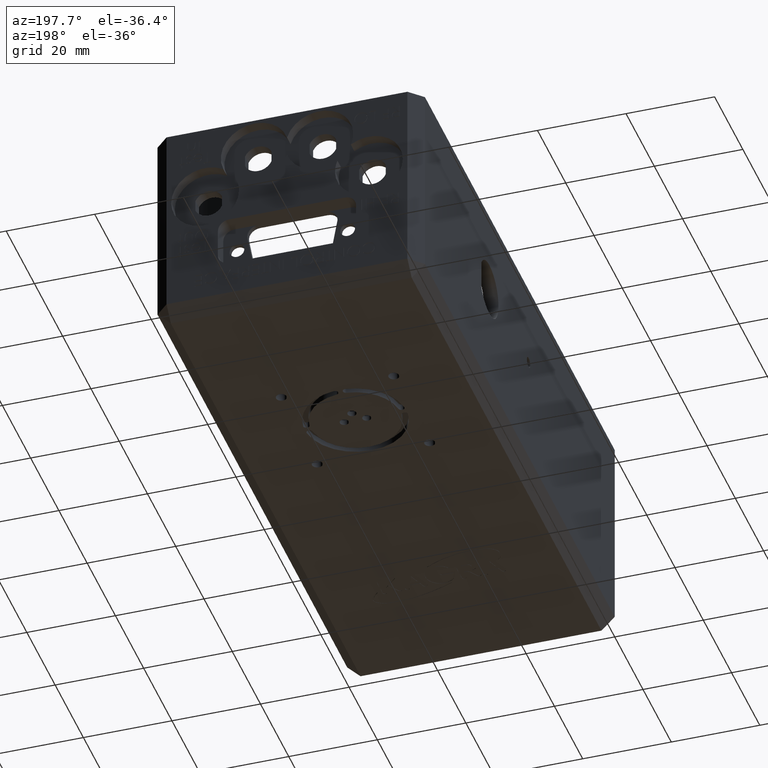
[diagram: clean part render]
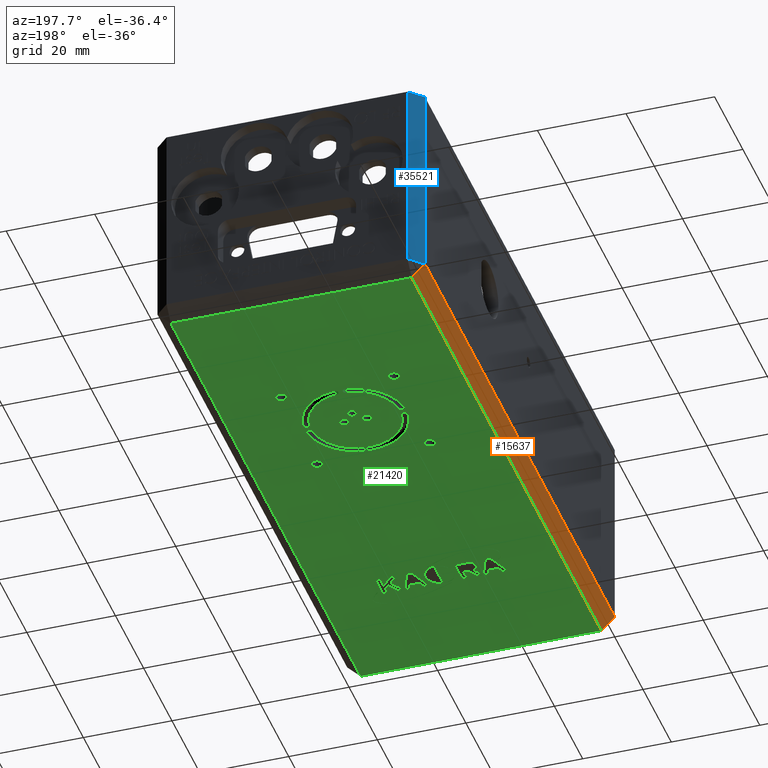
[diagram: same view with three faces highlighted in distinct colors, each labeled with its STEP entity id]
A machine part, auxiliary view with three faces highlighted in distinct colors.
Their STEP definitions:

[orange] entity #15637 — the highlighted planar face has unit normal (-0.7071, -0, -0.7071).
#167 = LINE ( 'NONE', #32251, #41245 ) ;
#1199 = VECTOR ( 'NONE', #19002, 1000.000000000000100 ) ;
#2359 = CARTESIAN_POINT ( 'NONE',  ( 0.0000000000000000000, 134.2999999999999500, -44.59999999999997300 ) ) ;
#4322 = ORIENTED_EDGE ( 'NONE', *, *, #32645, .F. ) ;
#6221 = CARTESIAN_POINT ( 'NONE',  ( 3.000000000000017800, 134.2999999999999800, -47.60000000000000100 ) ) ;
#9913 = AXIS2_PLACEMENT_3D ( 'NONE', #24455, #14839, #37449 ) ;
#9946 = ORIENTED_EDGE ( 'NONE', *, *, #22608, .F. ) ;
#14546 = ORIENTED_EDGE ( 'NONE', *, *, #22541, .F. ) ;
#14839 = DIRECTION ( 'NONE',  ( -0.7071067811865490200, -0.0000000000000000000, -0.7071067811865460200 ) ) ;
#15637 = ADVANCED_FACE ( 'NONE', ( #17830 ), #34218, .T. ) ;
#15739 = CARTESIAN_POINT ( 'NONE',  ( 3.000000000000017800, 134.2999999999999800, -47.60000000000000100 ) ) ;
#16556 = ORIENTED_EDGE ( 'NONE', *, *, #24249, .F. ) ;
#16727 = CARTESIAN_POINT ( 'NONE',  ( 3.000000000000017800, 137.2999999999999800, -47.60000000000000100 ) ) ;
#17830 = FACE_OUTER_BOUND ( 'NONE', #28375, .T. ) ;
#17857 = LINE ( 'NONE', #32906, #41598 ) ;
#19002 = DIRECTION ( 'NONE',  ( -0.7071067811865460200, -6.510317558088496200E-015, 0.7071067811865489100 ) ) ;
#19547 = DIRECTION ( 'NONE',  ( 0.0000000000000000000, -1.000000000000000000, 0.0000000000000000000 ) ) ;
#20904 = VECTOR ( 'NONE', #23085, 1000.000000000000000 ) ;
#21272 = CARTESIAN_POINT ( 'NONE',  ( 3.000000000000017300, 0.0000000000000000000, -47.60000000000000100 ) ) ;
#22541 = EDGE_CURVE ( 'NONE', #39810, #26322, #36686, .T. ) ;
#22608 = EDGE_CURVE ( 'NONE', #26322, #27450, #167, .T. ) ;
#23085 = DIRECTION ( 'NONE',  ( -0.0000000000000000000, 1.000000000000000000, 0.0000000000000000000 ) ) ;
#24249 = EDGE_CURVE ( 'NONE', #35450, #39810, #37092, .T. ) ;
#24455 = CARTESIAN_POINT ( 'NONE',  ( 3.000000000000017800, 0.0000000000000000000, -47.60000000000000100 ) ) ;
#26322 = VERTEX_POINT ( 'NONE', #2359 ) ;
#27450 = VERTEX_POINT ( 'NONE', #42052 ) ;
#28375 = EDGE_LOOP ( 'NONE', ( #4322, #9946, #14546, #16556 ) ) ;
#32251 = CARTESIAN_POINT ( 'NONE',  ( 0.0000000000000000000, 0.0000000000000000000, -44.59999999999997300 ) ) ;
#32645 = EDGE_CURVE ( 'NONE', #27450, #35450, #17857, .T. ) ;
#32906 = CARTESIAN_POINT ( 'NONE',  ( 1.500000000000015300, 0.0000000000000000000, -46.09999999999999400 ) ) ;
#34218 = PLANE ( 'NONE',  #9913 ) ;
#35450 = VERTEX_POINT ( 'NONE', #21272 ) ;
#36163 = DIRECTION ( 'NONE',  ( 0.7071067811865460200, 0.0000000000000000000, -0.7071067811865489100 ) ) ;
#36686 = LINE ( 'NONE', #15739, #1199 ) ;
#37092 = LINE ( 'NONE', #16727, #20904 ) ;
#37449 = DIRECTION ( 'NONE',  ( 0.0000000000000000000, -1.000000000000000000, 0.0000000000000000000 ) ) ;
#39810 = VERTEX_POINT ( 'NONE', #6221 ) ;
#41245 = VECTOR ( 'NONE', #19547, 1000.000000000000000 ) ;
#41598 = VECTOR ( 'NONE', #36163, 1000.000000000000100 ) ;
#42052 = CARTESIAN_POINT ( 'NONE',  ( 0.0000000000000000000, 0.0000000000000000000, -44.59999999999997300 ) ) ;

[blue] entity #35521 — the highlighted planar face has unit normal (0.7071, -0.7071, 0).
#2359 = CARTESIAN_POINT ( 'NONE',  ( 0.0000000000000000000, 134.2999999999999500, -44.59999999999997300 ) ) ;
#5379 = LINE ( 'NONE', #34556, #6364 ) ;
#6028 = ORIENTED_EDGE ( 'NONE', *, *, #21697, .F. ) ;
#6364 = VECTOR ( 'NONE', #15186, 1000.000000000000100 ) ;
#7378 = LINE ( 'NONE', #9555, #22554 ) ;
#9555 = CARTESIAN_POINT ( 'NONE',  ( 1.500000000000022000, 135.7999999999999800, -44.59999999999998000 ) ) ;
#10407 = VERTEX_POINT ( 'NONE', #21365 ) ;
#11221 = VERTEX_POINT ( 'NONE', #35826 ) ;
#11789 = CARTESIAN_POINT ( 'NONE',  ( 3.000000000000016400, 137.2999999999999800, -47.60000000000000100 ) ) ;
#13642 = CARTESIAN_POINT ( 'NONE',  ( 0.0000000000000000000, 134.2999999999999500, -47.60000000000000100 ) ) ;
#14135 = ORIENTED_EDGE ( 'NONE', *, *, #36635, .F. ) ;
#15186 = DIRECTION ( 'NONE',  ( -0.7071067811865459100, -0.7071067811865491300, -0.0000000000000000000 ) ) ;
#16215 = CARTESIAN_POINT ( 'NONE',  ( 3.000000000000017800, 137.2999999999999800, -47.60000000000000100 ) ) ;
#17607 = VECTOR ( 'NONE', #20132, 1000.000000000000000 ) ;
#17847 = VERTEX_POINT ( 'NONE', #31236 ) ;
#17964 = EDGE_CURVE ( 'NONE', #11221, #17847, #28345, .T. ) ;
#18313 = PLANE ( 'NONE',  #30160 ) ;
#20132 = DIRECTION ( 'NONE',  ( 0.0000000000000000000, 0.0000000000000000000, -1.000000000000000000 ) ) ;
#20160 = FACE_OUTER_BOUND ( 'NONE', #25791, .T. ) ;
#20764 = VECTOR ( 'NONE', #41418, 1000.000000000000000 ) ;
#21209 = EDGE_CURVE ( 'NONE', #17847, #10407, #5379, .T. ) ;
#21363 = ORIENTED_EDGE ( 'NONE', *, *, #17964, .F. ) ;
#21365 = CARTESIAN_POINT ( 'NONE',  ( 0.0000000000000000000, 134.2999999999999500, 0.0000000000000000000 ) ) ;
#21553 = DIRECTION ( 'NONE',  ( -0.0000000000000000000, 0.0000000000000000000, 1.000000000000000000 ) ) ;
#21697 = EDGE_CURVE ( 'NONE', #26322, #11221, #7378, .T. ) ;
#22554 = VECTOR ( 'NONE', #35448, 1000.000000000000000 ) ;
#25253 = ORIENTED_EDGE ( 'NONE', *, *, #21209, .F. ) ;
#25791 = EDGE_LOOP ( 'NONE', ( #25253, #21363, #6028, #14135 ) ) ;
#26178 = LINE ( 'NONE', #13642, #17607 ) ;
#26322 = VERTEX_POINT ( 'NONE', #2359 ) ;
#28345 = LINE ( 'NONE', #16215, #20764 ) ;
#30160 = AXIS2_PLACEMENT_3D ( 'NONE', #11789, #40928, #21553 ) ;
#31236 = CARTESIAN_POINT ( 'NONE',  ( 3.000000000000016400, 137.2999999999999800, 0.0000000000000000000 ) ) ;
#34556 = CARTESIAN_POINT ( 'NONE',  ( 3.000000000000016400, 137.2999999999999800, 0.0000000000000000000 ) ) ;
#35448 = DIRECTION ( 'NONE',  ( 0.7071067811865459100, 0.7071067811865491300, -2.830309076717813500E-015 ) ) ;
#35521 = ADVANCED_FACE ( 'NONE', ( #20160 ), #18313, .F. ) ;
#35826 = CARTESIAN_POINT ( 'NONE',  ( 3.000000000000017800, 137.2999999999999800, -44.59999999999998700 ) ) ;
#36635 = EDGE_CURVE ( 'NONE', #10407, #26322, #26178, .T. ) ;
#40928 = DIRECTION ( 'NONE',  ( 0.7071067811865492400, -0.7071067811865459100, 0.0000000000000000000 ) ) ;
#41418 = DIRECTION ( 'NONE',  ( 0.0000000000000000000, 0.0000000000000000000, 1.000000000000000000 ) ) ;

[green] entity #21420 — the highlighted planar face has unit normal (0, 0, -1).
#57 = CARTESIAN_POINT ( 'NONE',  ( 22.81520000000367100, 29.33700000000101600, -47.60000000000000100 ) ) ;
#73 = DIRECTION ( 'NONE',  ( 0.0000000000000000000, 0.0000000000000000000, -1.000000000000000000 ) ) ;
#111 = AXIS2_PLACEMENT_3D ( 'NONE', #20549, #1126, #23810 ) ;
#186 = EDGE_LOOP ( 'NONE', ( #1903, #16355, #18745, #10138, #13055 ) ) ;
#207 = DIRECTION ( 'NONE',  ( 1.000000000000000000, 0.0000000000000000000, 0.0000000000000000000 ) ) ;
#250 = FACE_BOUND ( 'NONE', #36930, .T. ) ;
#317 = DIRECTION ( 'NONE',  ( -0.3743223836077476700, -0.9272986321192403500, 0.0000000000000000000 ) ) ;
#452 = ORIENTED_EDGE ( 'NONE', *, *, #21941, .F. ) ;
#466 = DIRECTION ( 'NONE',  ( 0.0000000000000000000, 0.0000000000000000000, -1.000000000000000000 ) ) ;
#490 = VERTEX_POINT ( 'NONE', #29092 ) ;
#507 = CARTESIAN_POINT ( 'NONE',  ( 19.46487415199754500, 89.98197843785301600, -47.60000000000000100 ) ) ;
#527 = ORIENTED_EDGE ( 'NONE', *, *, #25593, .T. ) ;
#610 = EDGE_CURVE ( 'NONE', #39342, #39866, #690, .T. ) ;
#612 = DIRECTION ( 'NONE',  ( 0.0000000000000000000, 0.0000000000000000000, -1.000000000000000000 ) ) ;
#614 = VECTOR ( 'NONE', #38690, 1000.000000000000000 ) ;
#637 = CARTESIAN_POINT ( 'NONE',  ( 20.16066934584956600, 89.90536872428849300, -47.60000000000000100 ) ) ;
#662 = AXIS2_PLACEMENT_3D ( 'NONE', #7512, #30137, #10774 ) ;
#690 = LINE ( 'NONE', #19638, #34189 ) ;
#730 = VERTEX_POINT ( 'NONE', #18163 ) ;
#750 = CIRCLE ( 'NONE', #36477, 1.539726368038054800 ) ;
#805 = EDGE_CURVE ( 'NONE', #17888, #18954, #2206, .T. ) ;
#809 = AXIS2_PLACEMENT_3D ( 'NONE', #28833, #9447, #32081 ) ;
#825 = ORIENTED_EDGE ( 'NONE', *, *, #19208, .F. ) ;
#898 = ORIENTED_EDGE ( 'NONE', *, *, #14659, .T. ) ;
#952 = CARTESIAN_POINT ( 'NONE',  ( 19.47412743619744200, 87.53680652904338900, -47.60000000000000100 ) ) ;
#965 = AXIS2_PLACEMENT_3D ( 'NONE', #7206, #29822, #10455 ) ;
#1072 = DIRECTION ( 'NONE',  ( -1.000000000000000000, 0.0000000000000000000, 0.0000000000000000000 ) ) ;
#1113 = DIRECTION ( 'NONE',  ( 0.0000000000000000000, 0.0000000000000000000, -1.000000000000000000 ) ) ;
#1114 = VECTOR ( 'NONE', #33418, 1000.000000000000100 ) ;
#1126 = DIRECTION ( 'NONE',  ( 0.0000000000000000000, 0.0000000000000000000, -1.000000000000000000 ) ) ;
#1156 = VECTOR ( 'NONE', #26822, 1000.000000000000000 ) ;
#1202 = DIRECTION ( 'NONE',  ( -1.000000000000000000, 0.0000000000000000000, 0.0000000000000000000 ) ) ;
#1251 = EDGE_CURVE ( 'NONE', #4064, #26578, #24538, .T. ) ;
#1265 = AXIS2_PLACEMENT_3D ( 'NONE', #38042, #18689, #41318 ) ;
#1404 = AXIS2_PLACEMENT_3D ( 'NONE', #6455, #29108, #9718 ) ;
#1445 = VERTEX_POINT ( 'NONE', #26318 ) ;
#1534 = DIRECTION ( 'NONE',  ( 0.0000000000000000000, 0.0000000000000000000, -1.000000000000000000 ) ) ;
#1551 = ORIENTED_EDGE ( 'NONE', *, *, #29534, .F. ) ;
#1584 = VERTEX_POINT ( 'NONE', #2066 ) ;
#1593 = VERTEX_POINT ( 'NONE', #8612 ) ;
#1603 = CARTESIAN_POINT ( 'NONE',  ( 18.36404190411367000, 31.62702190411102200, -47.60000000000000100 ) ) ;
#1613 = VECTOR ( 'NONE', #27266, 1000.000000000000100 ) ;
#1674 = LINE ( 'NONE', #35432, #614 ) ;
#1707 = VERTEX_POINT ( 'NONE', #23444 ) ;
#1804 = CIRCLE ( 'NONE', #3664, 2.598077263729337900 ) ;
#1821 = CIRCLE ( 'NONE', #2165, 1.381652611511366300 ) ;
#1903 = ORIENTED_EDGE ( 'NONE', *, *, #4450, .F. ) ;
#1919 = CARTESIAN_POINT ( 'NONE',  ( 28.91480000000387600, 26.46060000000121400, -47.60000000000000100 ) ) ;
#1947 = DIRECTION ( 'NONE',  ( -1.000000000000000000, 0.0000000000000000000, 0.0000000000000000000 ) ) ;
#1962 = ORIENTED_EDGE ( 'NONE', *, *, #21014, .T. ) ;
#2066 = CARTESIAN_POINT ( 'NONE',  ( 42.66440000000385200, 27.33780000000119500, -47.60000000000000100 ) ) ;
#2081 = CARTESIAN_POINT ( 'NONE',  ( 40.93512584800246400, 87.61802156214690700, -47.60000000000000100 ) ) ;
#2150 = VECTOR ( 'NONE', #3194, 1000.000000000000000 ) ;
#2165 = AXIS2_PLACEMENT_3D ( 'NONE', #33149, #13780, #36399 ) ;
#2192 = CARTESIAN_POINT ( 'NONE',  ( 29.58260000000376200, 29.87280000000114900, -47.60000000000000100 ) ) ;
#2206 = CIRCLE ( 'NONE', #32493, 0.7000000000000061700 ) ;
#2241 = EDGE_CURVE ( 'NONE', #25554, #15734, #2597, .T. ) ;
#2276 = DIRECTION ( 'NONE',  ( 0.0000000000000000000, 0.0000000000000000000, -1.000000000000000000 ) ) ;
#2294 = EDGE_LOOP ( 'NONE', ( #31189, #35571, #9574, #26242, #7264 ) ) ;
#2314 = DIRECTION ( 'NONE',  ( 0.0000000000000000000, 0.0000000000000000000, -1.000000000000000000 ) ) ;
#2334 = ORIENTED_EDGE ( 'NONE', *, *, #16288, .F. ) ;
#2395 = CIRCLE ( 'NONE', #34439, 0.5183562905010131700 ) ;
#2461 = DIRECTION ( 'NONE',  ( -1.000000000000000000, 0.0000000000000000000, 0.0000000000000000000 ) ) ;
#2473 = EDGE_CURVE ( 'NONE', #38965, #30415, #13788, .T. ) ;
#2521 = VERTEX_POINT ( 'NONE', #12954 ) ;
#2530 = CARTESIAN_POINT ( 'NONE',  ( 21.92891562500375000, 27.37748437500101800, -47.60000000000000100 ) ) ;
#2550 = CARTESIAN_POINT ( 'NONE',  ( 31.38197843785305700, 99.53512584800245100, -47.60000000000000100 ) ) ;
#2554 = LINE ( 'NONE', #23872, #32970 ) ;
#2597 = LINE ( 'NONE', #30369, #1613 ) ;
#2651 = EDGE_CURVE ( 'NONE', #8902, #1707, #17333, .T. ) ;
#2683 = ORIENTED_EDGE ( 'NONE', *, *, #11159, .T. ) ;
#2737 = CARTESIAN_POINT ( 'NONE',  ( 30.20000000000000600, 88.79999999999998300, -47.60000000000000100 ) ) ;
#2795 = EDGE_CURVE ( 'NONE', #25231, #1445, #5636, .T. ) ;
#2982 = EDGE_CURVE ( 'NONE', #5694, #20763, #2554, .T. ) ;
#3104 = VECTOR ( 'NONE', #8495, 1000.000000000000000 ) ;
#3147 = DIRECTION ( 'NONE',  ( 0.0000000000000000000, 0.0000000000000000000, -1.000000000000000000 ) ) ;
#3178 = AXIS2_PLACEMENT_3D ( 'NONE', #38459, #19100, #41735 ) ;
#3194 = DIRECTION ( 'NONE',  ( 1.000000000000000000, 0.0000000000000000000, 0.0000000000000000000 ) ) ;
#3242 = VERTEX_POINT ( 'NONE', #12804 ) ;
#3243 = AXIS2_PLACEMENT_3D ( 'NONE', #19515, #73, #22764 ) ;
#3322 = DIRECTION ( 'NONE',  ( 0.0000000000000000000, 0.0000000000000000000, -1.000000000000000000 ) ) ;
#3482 = VECTOR ( 'NONE', #7183, 1000.000000000000000 ) ;
#3553 = EDGE_CURVE ( 'NONE', #8713, #36472, #19785, .T. ) ;
#3556 = CIRCLE ( 'NONE', #21217, 1.200000000000003100 ) ;
#3581 = CARTESIAN_POINT ( 'NONE',  ( 19.38007535644871400, -7.823149685171559400, -47.60000000000000100 ) ) ;
#3593 = EDGE_CURVE ( 'NONE', #1707, #28820, #27380, .T. ) ;
#3638 = DIRECTION ( 'NONE',  ( 0.0000000000000000000, 0.0000000000000000000, -1.000000000000000000 ) ) ;
#3664 = AXIS2_PLACEMENT_3D ( 'NONE', #29897, #10529, #33165 ) ;
#3671 = AXIS2_PLACEMENT_3D ( 'NONE', #9600, #32223, #12888 ) ;
#3683 = ORIENTED_EDGE ( 'NONE', *, *, #5185, .T. ) ;
#3707 = CARTESIAN_POINT ( 'NONE',  ( 27.14835186790386600, 31.77253246194081300, -47.60000000000000100 ) ) ;
#3758 = VECTOR ( 'NONE', #23345, 1000.000000000000000 ) ;
#3792 = DIRECTION ( 'NONE',  ( -1.000000000000000000, 0.0000000000000000000, 0.0000000000000000000 ) ) ;
#3797 = CIRCLE ( 'NONE', #662, 6.290699041846544000 ) ;
#3814 = CARTESIAN_POINT ( 'NONE',  ( 20.53922788436959800, 26.20108833451210400, -47.60000000000000100 ) ) ;
#3837 = AXIS2_PLACEMENT_3D ( 'NONE', #9543, #32160, #12829 ) ;
#3850 = VERTEX_POINT ( 'NONE', #10798 ) ;
#3855 = EDGE_CURVE ( 'NONE', #19993, #15231, #32928, .T. ) ;
#3962 = CARTESIAN_POINT ( 'NONE',  ( 44.17785019552714900, 61.25497958525083000, -47.60000000000000100 ) ) ;
#4009 = DIRECTION ( 'NONE',  ( 0.0000000000000000000, 0.0000000000000000000, -1.000000000000000000 ) ) ;
#4045 = AXIS2_PLACEMENT_3D ( 'NONE', #30145, #10782, #33414 ) ;
#4064 = VERTEX_POINT ( 'NONE', #21407 ) ;
#4078 = CARTESIAN_POINT ( 'NONE',  ( 30.20000000000000600, 88.79999999999998300, -47.60000000000000100 ) ) ;
#4105 = ORIENTED_EDGE ( 'NONE', *, *, #37853, .F. ) ;
#4116 = EDGE_CURVE ( 'NONE', #9384, #29912, #7616, .T. ) ;
#4129 = EDGE_CURVE ( 'NONE', #7985, #37943, #41034, .T. ) ;
#4187 = DIRECTION ( 'NONE',  ( 0.0000000000000000000, -1.000000000000000000, 0.0000000000000000000 ) ) ;
#4257 = CARTESIAN_POINT ( 'NONE',  ( 28.93680652904340900, 99.52587256380256500, -47.60000000000000100 ) ) ;
#4264 = EDGE_CURVE ( 'NONE', #15734, #23965, #28347, .T. ) ;
#4266 = DIRECTION ( 'NONE',  ( -1.000000000000000000, 0.0000000000000000000, 0.0000000000000000000 ) ) ;
#4321 = EDGE_CURVE ( 'NONE', #4064, #31775, #34921, .T. ) ;
#4330 = EDGE_CURVE ( 'NONE', #29148, #18690, #9086, .T. ) ;
#4351 = CARTESIAN_POINT ( 'NONE',  ( 20.28256543691267700, 36.19491921860409900, -47.60000000000000100 ) ) ;
#4376 = AXIS2_PLACEMENT_3D ( 'NONE', #20052, #612, #23304 ) ;
#4422 = AXIS2_PLACEMENT_3D ( 'NONE', #20973, #1534, #24227 ) ;
#4439 = CARTESIAN_POINT ( 'NONE',  ( 26.35583955550780600, 9.840630949618473600, -47.60000000000000100 ) ) ;
#4450 = EDGE_CURVE ( 'NONE', #14180, #29148, #6027, .T. ) ;
#4536 = ORIENTED_EDGE ( 'NONE', *, *, #33534, .F. ) ;
#4568 = CARTESIAN_POINT ( 'NONE',  ( 0.0000000000000000000, 32.25420000000119100, -47.60000000000000100 ) ) ;
#4651 = CIRCLE ( 'NONE', #20619, 6.110699041846301000 ) ;
#4663 = VERTEX_POINT ( 'NONE', #22897 ) ;
#4750 = CARTESIAN_POINT ( 'NONE',  ( 27.65999999999999700, 88.79999999999998300, -47.60000000000000100 ) ) ;
#4774 = ORIENTED_EDGE ( 'NONE', *, *, #2795, .F. ) ;
#4852 = CARTESIAN_POINT ( 'NONE',  ( 3.572611433586375000, -2.285862142319637700, -47.60000000000000100 ) ) ;
#4881 = DIRECTION ( 'NONE',  ( -1.000000000000000000, 0.0000000000000000000, 0.0000000000000000000 ) ) ;
#4891 = EDGE_CURVE ( 'NONE', #3242, #27381, #37930, .T. ) ;
#5085 = CARTESIAN_POINT ( 'NONE',  ( 19.88921593763006300, 27.15997717967407600, -47.60000000000000100 ) ) ;
#5125 = DIRECTION ( 'NONE',  ( 0.0000000000000000000, 0.0000000000000000000, -1.000000000000000000 ) ) ;
#5136 = CARTESIAN_POINT ( 'NONE',  ( 57.39999999999994900, 0.0000000000000000000, -47.60000000000000100 ) ) ;
#5185 = EDGE_CURVE ( 'NONE', #29541, #14173, #23829, .T. ) ;
#5196 = EDGE_CURVE ( 'NONE', #31775, #15231, #7632, .T. ) ;
#5250 = ORIENTED_EDGE ( 'NONE', *, *, #18506, .T. ) ;
#5251 = CARTESIAN_POINT ( 'NONE',  ( 24.75320000000383300, 0.0000000000000000000, -47.60000000000000100 ) ) ;
#5317 = AXIS2_PLACEMENT_3D ( 'NONE', #27944, #8560, #31192 ) ;
#5434 = CIRCLE ( 'NONE', #8917, 0.5155740483605980600 ) ;
#5473 = DIRECTION ( 'NONE',  ( -1.000000000000000000, 0.0000000000000000000, 0.0000000000000000000 ) ) ;
#5605 = CARTESIAN_POINT ( 'NONE',  ( 40.23933065415044300, 87.69463127571144400, -47.60000000000000100 ) ) ;
#5611 = EDGE_CURVE ( 'NONE', #5701, #24772, #32257, .T. ) ;
#5636 = CIRCLE ( 'NONE', #24303, 0.5183562905008709500 ) ;
#5649 = CARTESIAN_POINT ( 'NONE',  ( 17.50000000000000000, 101.4999999999999900, -47.60000000000000100 ) ) ;
#5689 = DIRECTION ( 'NONE',  ( 0.0000000000000000000, 0.0000000000000000000, -1.000000000000000000 ) ) ;
#5694 = VERTEX_POINT ( 'NONE', #41548 ) ;
#5701 = VERTEX_POINT ( 'NONE', #28646 ) ;
#5709 = CIRCLE ( 'NONE', #965, 3.300000000000059800 ) ;
#5718 = CARTESIAN_POINT ( 'NONE',  ( 38.61271619178415200, 27.52140000000103400, -47.60000000000000100 ) ) ;
#5736 = CARTESIAN_POINT ( 'NONE',  ( 0.0000000000000000000, 30.06180000000109600, -47.60000000000000100 ) ) ;
#5786 = CARTESIAN_POINT ( 'NONE',  ( 30.19999999999999900, 91.33999999997165300, -47.60000000000000100 ) ) ;
#5810 = DIRECTION ( 'NONE',  ( -1.000000000000000000, 0.0000000000000000000, 0.0000000000000000000 ) ) ;
#5826 = DIRECTION ( 'NONE',  ( -1.000000000000000000, 0.0000000000000000000, 0.0000000000000000000 ) ) ;
#5831 = FACE_BOUND ( 'NONE', #2294, .T. ) ;
#5913 = ORIENTED_EDGE ( 'NONE', *, *, #39255, .F. ) ;
#5934 = CARTESIAN_POINT ( 'NONE',  ( 16.80240323000776900, 33.60536991019532800, -47.60000000000000100 ) ) ;
#5974 = CARTESIAN_POINT ( 'NONE',  ( 31.73999999999999800, 88.79999999999998300, -47.60000000000000100 ) ) ;
#6005 = CARTESIAN_POINT ( 'NONE',  ( 43.75007600732711000, 23.74889351320906500, -47.60000000000000100 ) ) ;
#6008 = DIRECTION ( 'NONE',  ( -1.000000000000000000, 0.0000000000000000000, 0.0000000000000000000 ) ) ;
#6027 = CIRCLE ( 'NONE', #27569, 10.09999999999999400 ) ;
#6090 = CARTESIAN_POINT ( 'NONE',  ( 22.37660000000378300, 27.10320000000112000, -47.60000000000000100 ) ) ;
#6221 = CARTESIAN_POINT ( 'NONE',  ( 3.000000000000017800, 134.2999999999999800, -47.60000000000000100 ) ) ;
#6288 = LINE ( 'NONE', #32491, #30091 ) ;
#6370 = CARTESIAN_POINT ( 'NONE',  ( 16.38919654516367400, 31.25456249767819700, -47.60000000000000100 ) ) ;
#6442 = LINE ( 'NONE', #37945, #30251 ) ;
#6455 = CARTESIAN_POINT ( 'NONE',  ( 27.33735186790387000, 31.77253246194081300, -47.60000000000000100 ) ) ;
#6535 = EDGE_LOOP ( 'NONE', ( #24100, #27863 ) ) ;
#6576 = ORIENTED_EDGE ( 'NONE', *, *, #28245, .F. ) ;
#6588 = EDGE_CURVE ( 'NONE', #26578, #27044, #30701, .T. ) ;
#6605 = ORIENTED_EDGE ( 'NONE', *, *, #5196, .T. ) ;
#6646 = DIRECTION ( 'NONE',  ( 0.0000000000000000000, 0.0000000000000000000, 1.000000000000000000 ) ) ;
#6666 = ORIENTED_EDGE ( 'NONE', *, *, #28786, .F. ) ;
#6709 = EDGE_CURVE ( 'NONE', #40910, #4663, #11484, .T. ) ;
#6771 = LINE ( 'NONE', #20317, #14415 ) ;
#6784 = ORIENTED_EDGE ( 'NONE', *, *, #8120, .T. ) ;
#6797 = ORIENTED_EDGE ( 'NONE', *, *, #4321, .T. ) ;
#6860 = FACE_BOUND ( 'NONE', #30713, .T. ) ;
#6907 = VERTEX_POINT ( 'NONE', #31577 ) ;
#6950 = VERTEX_POINT ( 'NONE', #32120 ) ;
#6987 = AXIS2_PLACEMENT_3D ( 'NONE', #30798, #11441, #34083 ) ;
#7064 = VERTEX_POINT ( 'NONE', #30287 ) ;
#7084 = AXIS2_PLACEMENT_3D ( 'NONE', #17657, #40284, #20887 ) ;
#7085 = DIRECTION ( 'NONE',  ( -1.000000000000000000, 0.0000000000000000000, 0.0000000000000000000 ) ) ;
#7176 = VERTEX_POINT ( 'NONE', #17898 ) ;
#7183 = DIRECTION ( 'NONE',  ( 0.0000000000000000000, 1.000000000000000000, 0.0000000000000000000 ) ) ;
#7206 = CARTESIAN_POINT ( 'NONE',  ( 29.89400000000383500, 30.00000000000117200, -47.60000000000000100 ) ) ;
#7220 = LINE ( 'NONE', #32050, #15819 ) ;
#7246 = DIRECTION ( 'NONE',  ( -1.000000000000000000, 0.0000000000000000000, 0.0000000000000000000 ) ) ;
#7264 = ORIENTED_EDGE ( 'NONE', *, *, #41817, .F. ) ;
#7306 = EDGE_CURVE ( 'NONE', #17648, #23569, #14507, .T. ) ;
#7339 = CARTESIAN_POINT ( 'NONE',  ( 25.83440000000383900, 0.0000000000000000000, -47.60000000000000100 ) ) ;
#7341 = CARTESIAN_POINT ( 'NONE',  ( 5.885423981093883800, -2.197474501163885700, -47.60000000000000100 ) ) ;
#7354 = DIRECTION ( 'NONE',  ( -1.000000000000000000, 0.0000000000000000000, 0.0000000000000000000 ) ) ;
#7361 = CIRCLE ( 'NONE', #31088, 0.7000000000000061700 ) ;
#7379 = DIRECTION ( 'NONE',  ( 0.0000000000000000000, 0.0000000000000000000, -1.000000000000000000 ) ) ;
#7446 = CARTESIAN_POINT ( 'NONE',  ( 0.0000000000000000000, 29.68380000000123800, -47.60000000000000100 ) ) ;
#7488 = CARTESIAN_POINT ( 'NONE',  ( 30.20000000000390400, 32.90593324080345600, -47.60000000000000100 ) ) ;
#7506 = CIRCLE ( 'NONE', #3178, 1.719742317828079500 ) ;
#7510 = DIRECTION ( 'NONE',  ( 0.0000000000000000000, 0.0000000000000000000, -1.000000000000000000 ) ) ;
#7512 = CARTESIAN_POINT ( 'NONE',  ( 41.03814645620767000, 22.88245973876376000, -47.60000000000000100 ) ) ;
#7514 = DIRECTION ( 'NONE',  ( -1.000000000000000000, 0.0000000000000000000, 0.0000000000000000000 ) ) ;
#7577 = CARTESIAN_POINT ( 'NONE',  ( 36.81751619178410800, 31.96860000000123500, -47.60000000000000100 ) ) ;
#7616 = CIRCLE ( 'NONE', #21864, 1.000000000008282500 ) ;
#7632 = LINE ( 'NONE', #4439, #22803 ) ;
#7669 = CARTESIAN_POINT ( 'NONE',  ( 29.89400000000383500, 30.00000000000117200, -47.60000000000000100 ) ) ;
#7690 = EDGE_CURVE ( 'NONE', #11562, #19993, #12936, .T. ) ;
#7701 = CIRCLE ( 'NONE', #1404, 0.1890000000000051400 ) ;
#7738 = DIRECTION ( 'NONE',  ( 0.0000000000000000000, 1.000000000000000000, 0.0000000000000000000 ) ) ;
#7767 = VERTEX_POINT ( 'NONE', #9770 ) ;
#7788 = VERTEX_POINT ( 'NONE', #32388 ) ;
#7829 = CARTESIAN_POINT ( 'NONE',  ( 28.91480000000387600, 26.46060000000121400, -47.60000000000000100 ) ) ;
#7835 = DIRECTION ( 'NONE',  ( 0.0000000000000000000, 0.0000000000000000000, -1.000000000000000000 ) ) ;
#7837 = DIRECTION ( 'NONE',  ( 1.000000000000000000, 0.0000000000000000000, 0.0000000000000000000 ) ) ;
#7850 = CARTESIAN_POINT ( 'NONE',  ( 18.76907895814553100, 90.05858815141758100, -47.60000000000000100 ) ) ;
#7879 = VERTEX_POINT ( 'NONE', #29982 ) ;
#7903 = AXIS2_PLACEMENT_3D ( 'NONE', #32671, #13321, #35920 ) ;
#7907 = CARTESIAN_POINT ( 'NONE',  ( 17.68064190411361400, 31.99524190411099400, -47.60000000000000100 ) ) ;
#7908 = FACE_OUTER_BOUND ( 'NONE', #8218, .T. ) ;
#7950 = VERTEX_POINT ( 'NONE', #15164 ) ;
#7985 = VERTEX_POINT ( 'NONE', #31535 ) ;
#8010 = DIRECTION ( 'NONE',  ( -1.000000000000000000, 0.0000000000000000000, 0.0000000000000000000 ) ) ;
#8036 = CARTESIAN_POINT ( 'NONE',  ( 15.26267686196971600, 33.60536991019532800, -47.60000000000000100 ) ) ;
#8040 = CIRCLE ( 'NONE', #17061, 10.27709883187938000 ) ;
#8072 = LINE ( 'NONE', #4852, #11618 ) ;
#8118 = DIRECTION ( 'NONE',  ( -0.5389517990453520600, -0.8423366062957126100, 0.0000000000000000000 ) ) ;
#8120 = EDGE_CURVE ( 'NONE', #7788, #24765, #41754, .T. ) ;
#8168 = EDGE_CURVE ( 'NONE', #10636, #36512, #6288, .T. ) ;
#8218 = EDGE_LOOP ( 'NONE', ( #13132, #26264, #28256, #34772 ) ) ;
#8314 = VERTEX_POINT ( 'NONE', #40175 ) ;
#8399 = ORIENTED_EDGE ( 'NONE', *, *, #39966, .F. ) ;
#8461 = CARTESIAN_POINT ( 'NONE',  ( 42.91939496005994000, 28.60532107243852500, -47.60000000000000100 ) ) ;
#8495 = DIRECTION ( 'NONE',  ( 0.0000000000000000000, 1.000000000000000000, 0.0000000000000000000 ) ) ;
#8500 = DIRECTION ( 'NONE',  ( -1.000000000000000000, 0.0000000000000000000, 0.0000000000000000000 ) ) ;
#8560 = DIRECTION ( 'NONE',  ( 0.0000000000000000000, 0.0000000000000000000, -1.000000000000000000 ) ) ;
#8612 = CARTESIAN_POINT ( 'NONE',  ( 15.26676254037983100, 34.55218005484594100, -47.60000000000000100 ) ) ;
#8675 = VERTEX_POINT ( 'NONE', #8036 ) ;
#8713 = VERTEX_POINT ( 'NONE', #27412 ) ;
#8717 = CARTESIAN_POINT ( 'NONE',  ( 17.50000000000000400, 76.09999999999998000, -47.60000000000000100 ) ) ;
#8818 = AXIS2_PLACEMENT_3D ( 'NONE', #12201, #34831, #15469 ) ;
#8826 = CARTESIAN_POINT ( 'NONE',  ( 36.02801903393681500, 23.91322950263074900, -47.60000000000000100 ) ) ;
#8861 = CARTESIAN_POINT ( 'NONE',  ( 16.36611298324569600, 27.35400954189263300, -47.60000000000000100 ) ) ;
#8872 = CARTESIAN_POINT ( 'NONE',  ( 39.21680000000390700, 27.54180000000107500, -47.60000000000000100 ) ) ;
#8902 = VERTEX_POINT ( 'NONE', #19605 ) ;
#8909 = CARTESIAN_POINT ( 'NONE',  ( 42.89999999999999900, 101.4999999999999900, -47.60000000000000100 ) ) ;
#8917 = AXIS2_PLACEMENT_3D ( 'NONE', #37044, #17696, #40318 ) ;
#8920 = DIRECTION ( 'NONE',  ( 1.000000000000000000, 0.0000000000000000000, 0.0000000000000000000 ) ) ;
#8965 = AXIS2_PLACEMENT_3D ( 'NONE', #30041, #10668, #33304 ) ;
#8970 = CARTESIAN_POINT ( 'NONE',  ( 45.59883534542362300, 24.41835209371123800, -47.60000000000000100 ) ) ;
#8993 = DIRECTION ( 'NONE',  ( 1.000000000000000000, 0.0000000000000000000, 0.0000000000000000000 ) ) ;
#9011 = EDGE_CURVE ( 'NONE', #36633, #6950, #25997, .T. ) ;
#9041 = DIRECTION ( 'NONE',  ( -1.000000000000000000, 0.0000000000000000000, 0.0000000000000000000 ) ) ;
#9065 = CIRCLE ( 'NONE', #6987, 1.199999999999999700 ) ;
#9071 = VERTEX_POINT ( 'NONE', #39998 ) ;
#9076 = EDGE_CURVE ( 'NONE', #24772, #25627, #41205, .T. ) ;
#9086 = CIRCLE ( 'NONE', #18895, 0.7000000000000061700 ) ;
#9090 = ORIENTED_EDGE ( 'NONE', *, *, #7306, .T. ) ;
#9132 = CIRCLE ( 'NONE', #14697, 38.04075414215770900 ) ;
#9149 = CARTESIAN_POINT ( 'NONE',  ( 15.88544190411365500, 27.54804190411106300, -47.60000000000000100 ) ) ;
#9169 = DIRECTION ( 'NONE',  ( -2.626620318431873300E-014, -1.000000000000000000, 0.0000000000000000000 ) ) ;
#9171 = ORIENTED_EDGE ( 'NONE', *, *, #10393, .T. ) ;
#9196 = DIRECTION ( 'NONE',  ( -1.000000000000000000, 0.0000000000000000000, 0.0000000000000000000 ) ) ;
#9231 = ORIENTED_EDGE ( 'NONE', *, *, #29043, .F. ) ;
#9267 = DIRECTION ( 'NONE',  ( 0.0000000000000000000, 0.0000000000000000000, -1.000000000000000000 ) ) ;
#9378 = CARTESIAN_POINT ( 'NONE',  ( 37.24750667266510400, 28.21500000000113700, -47.60000000000000100 ) ) ;
#9384 = VERTEX_POINT ( 'NONE', #16459 ) ;
#9409 = DIRECTION ( 'NONE',  ( -0.7213873210309559300, 0.6925318281897089300, 0.0000000000000000000 ) ) ;
#9447 = DIRECTION ( 'NONE',  ( 0.0000000000000000000, 0.0000000000000000000, -1.000000000000000000 ) ) ;
#9464 = VERTEX_POINT ( 'NONE', #29593 ) ;
#9543 = CARTESIAN_POINT ( 'NONE',  ( 17.50000000000000400, 76.09999999999998000, -47.60000000000000100 ) ) ;
#9547 = VECTOR ( 'NONE', #32291, 1000.000000000000100 ) ;
#9567 = EDGE_CURVE ( 'NONE', #36512, #23965, #9748, .T. ) ;
#9574 = ORIENTED_EDGE ( 'NONE', *, *, #3593, .F. ) ;
#9593 = CIRCLE ( 'NONE', #36822, 1.199999999999999700 ) ;
#9600 = CARTESIAN_POINT ( 'NONE',  ( 38.13204511265214300, 27.32736763778270000, -47.60000000000000100 ) ) ;
#9628 = AXIS2_PLACEMENT_3D ( 'NONE', #2550, #25241, #5826 ) ;
#9718 = DIRECTION ( 'NONE',  ( -1.000000000000000000, 0.0000000000000000000, 0.0000000000000000000 ) ) ;
#9748 = LINE ( 'NONE', #39799, #1114 ) ;
#9757 = AXIS2_PLACEMENT_3D ( 'NONE', #11322, #33955, #14599 ) ;
#9770 = CARTESIAN_POINT ( 'NONE',  ( 20.27798984374495800, 36.47486636824181300, -47.60000000000000100 ) ) ;
#9776 = EDGE_CURVE ( 'NONE', #27085, #1593, #20900, .T. ) ;
#9880 = CARTESIAN_POINT ( 'NONE',  ( 21.92891562500375000, 27.37748437500101800, -47.60000000000000100 ) ) ;
#9894 = CIRCLE ( 'NONE', #20895, 10.09999999999999800 ) ;
#9912 = FACE_BOUND ( 'NONE', #37404, .T. ) ;
#9916 = CARTESIAN_POINT ( 'NONE',  ( 39.18604859242335400, 27.35959838709817800, -47.60000000000000100 ) ) ;
#9961 = EDGE_CURVE ( 'NONE', #38792, #31974, #15810, .T. ) ;
#10122 = CARTESIAN_POINT ( 'NONE',  ( 18.77412743619743900, 87.53680652904338900, -47.60000000000000100 ) ) ;
#10128 = CIRCLE ( 'NONE', #39926, 0.5551465688709635900 ) ;
#10138 = ORIENTED_EDGE ( 'NONE', *, *, #41144, .F. ) ;
#10282 = ORIENTED_EDGE ( 'NONE', *, *, #10335, .T. ) ;
#10329 = EDGE_CURVE ( 'NONE', #23569, #6950, #41115, .T. ) ;
#10335 = EDGE_CURVE ( 'NONE', #40910, #13946, #16298, .T. ) ;
#10344 = DIRECTION ( 'NONE',  ( -0.0000000000000000000, -0.0000000000000000000, 1.000000000000000000 ) ) ;
#10393 = EDGE_CURVE ( 'NONE', #5694, #490, #4651, .T. ) ;
#10419 = ORIENTED_EDGE ( 'NONE', *, *, #10835, .F. ) ;
#10455 = DIRECTION ( 'NONE',  ( -1.000000000000000000, 0.0000000000000000000, 0.0000000000000000000 ) ) ;
#10503 = EDGE_CURVE ( 'NONE', #28820, #41785, #37055, .T. ) ;
#10529 = DIRECTION ( 'NONE',  ( 0.0000000000000000000, 0.0000000000000000000, -1.000000000000000000 ) ) ;
#10636 = VERTEX_POINT ( 'NONE', #13117 ) ;
#10663 = EDGE_CURVE ( 'NONE', #8314, #20989, #31934, .T. ) ;
#10668 = DIRECTION ( 'NONE',  ( 0.0000000000000000000, 0.0000000000000000000, -1.000000000000000000 ) ) ;
#10702 = CIRCLE ( 'NONE', #13320, 0.7762870141899691500 ) ;
#10774 = DIRECTION ( 'NONE',  ( -1.000000000000000000, 0.0000000000000000000, 0.0000000000000000000 ) ) ;
#10782 = DIRECTION ( 'NONE',  ( 0.0000000000000000000, 0.0000000000000000000, -1.000000000000000000 ) ) ;
#10798 = CARTESIAN_POINT ( 'NONE',  ( 16.62042412204665400, 35.70170607614449000, -47.60000000000000100 ) ) ;
#10835 = EDGE_CURVE ( 'NONE', #29541, #19728, #10702, .T. ) ;
#10851 = VERTEX_POINT ( 'NONE', #11416 ) ;
#10892 = CARTESIAN_POINT ( 'NONE',  ( 25.35440000000381400, 32.25420000000119100, -47.60000000000000100 ) ) ;
#10912 = VECTOR ( 'NONE', #16002, 1000.000000000000100 ) ;
#10929 = DIRECTION ( 'NONE',  ( -1.000000000000000000, 0.0000000000000000000, 0.0000000000000000000 ) ) ;
#10983 = DIRECTION ( 'NONE',  ( 0.0000000000000000000, 0.0000000000000000000, -1.000000000000000000 ) ) ;
#11006 = DIRECTION ( 'NONE',  ( -0.6975310168602499900, 0.7165545900473359000, 0.0000000000000000000 ) ) ;
#11045 = CARTESIAN_POINT ( 'NONE',  ( 24.28446616379620300, 28.24466767241651900, -47.60000000000000100 ) ) ;
#11109 = CIRCLE ( 'NONE', #19475, 0.7762870141899622700 ) ;
#11159 = EDGE_CURVE ( 'NONE', #23924, #35400, #9132, .T. ) ;
#11185 = CIRCLE ( 'NONE', #27043, 3.827332175780489900 ) ;
#11218 = VECTOR ( 'NONE', #11006, 1000.000000000000100 ) ;
#11244 = CARTESIAN_POINT ( 'NONE',  ( 43.19475096380909200, 31.87680023574665400, -47.60000000000000100 ) ) ;
#11310 = CIRCLE ( 'NONE', #14063, 0.5304000000000280700 ) ;
#11322 = CARTESIAN_POINT ( 'NONE',  ( 29.89152949735671100, 29.99973878972750900, -47.60000000000000100 ) ) ;
#11334 = LINE ( 'NONE', #5736, #27520 ) ;
#11416 = CARTESIAN_POINT ( 'NONE',  ( 29.58740000000356600, 30.06180000000109600, -47.60000000000000100 ) ) ;
#11441 = DIRECTION ( 'NONE',  ( 0.0000000000000000000, 0.0000000000000000000, 1.000000000000000000 ) ) ;
#11449 = AXIS2_PLACEMENT_3D ( 'NONE', #4750, #27379, #8010 ) ;
#11484 = CIRCLE ( 'NONE', #40899, 0.5304490361948341900 ) ;
#11540 = ORIENTED_EDGE ( 'NONE', *, *, #9567, .T. ) ;
#11562 = VERTEX_POINT ( 'NONE', #35651 ) ;
#11618 = VECTOR ( 'NONE', #8118, 1000.000000000000000 ) ;
#11647 = CARTESIAN_POINT ( 'NONE',  ( 42.66440000000385200, 31.88700000000279600, -47.60000000000000100 ) ) ;
#11729 = DIRECTION ( 'NONE',  ( -1.000000000000000000, 0.0000000000000000000, 0.0000000000000000000 ) ) ;
#11753 = CARTESIAN_POINT ( 'NONE',  ( 18.37195809589406500, 31.62702190411096500, -47.60000000000000100 ) ) ;
#11801 = VERTEX_POINT ( 'NONE', #14157 ) ;
#11932 = CARTESIAN_POINT ( 'NONE',  ( 18.36800000000399200, 32.40329882755838000, -47.60000000000000100 ) ) ;
#11953 = EDGE_CURVE ( 'NONE', #36588, #7950, #13678, .T. ) ;
#11985 = DIRECTION ( 'NONE',  ( 1.000000000000000000, 0.0000000000000000000, 0.0000000000000000000 ) ) ;
#12105 = DIRECTION ( 'NONE',  ( -1.000000000000000000, 0.0000000000000000000, 0.0000000000000000000 ) ) ;
#12166 = DIRECTION ( 'NONE',  ( 1.000000000000000000, 0.0000000000000000000, 0.0000000000000000000 ) ) ;
#12201 = CARTESIAN_POINT ( 'NONE',  ( 22.95926442552567800, 30.79999982859778700, -47.60000000000000100 ) ) ;
#12245 = CARTESIAN_POINT ( 'NONE',  ( 27.65999999999999700, 88.79999999999998300, -47.60000000000000100 ) ) ;
#12285 = DIRECTION ( 'NONE',  ( 0.0000000000000000000, 0.0000000000000000000, -1.000000000000000000 ) ) ;
#12319 = VERTEX_POINT ( 'NONE', #32018 ) ;
#12355 = CARTESIAN_POINT ( 'NONE',  ( 28.65999999999999700, 88.79999999999998300, -47.60000000000000100 ) ) ;
#12403 = ORIENTED_EDGE ( 'NONE', *, *, #9076, .F. ) ;
#12411 = AXIS2_PLACEMENT_3D ( 'NONE', #2192, #24892, #5473 ) ;
#12453 = CARTESIAN_POINT ( 'NONE',  ( 36.13015809589409600, 32.37665692344853600, -47.60000000000000100 ) ) ;
#12468 = DIRECTION ( 'NONE',  ( 0.0000000000000000000, 0.0000000000000000000, -1.000000000000000000 ) ) ;
#12477 = CARTESIAN_POINT ( 'NONE',  ( 27.49119850252808600, 11.09736453313003900, -47.60000000000000100 ) ) ;
#12480 = VERTEX_POINT ( 'NONE', #39230 ) ;
#12483 = AXIS2_PLACEMENT_3D ( 'NONE', #31656, #12285, #34915 ) ;
#12535 = DIRECTION ( 'NONE',  ( 0.0000000000000000000, 0.0000000000000000000, -1.000000000000000000 ) ) ;
#12567 = EDGE_CURVE ( 'NONE', #2521, #34846, #23242, .T. ) ;
#12671 = ORIENTED_EDGE ( 'NONE', *, *, #33886, .F. ) ;
#12682 = EDGE_CURVE ( 'NONE', #12319, #41609, #8072, .T. ) ;
#12793 = CARTESIAN_POINT ( 'NONE',  ( 57.39999999999994900, 134.3000000000000100, -47.60000000000000100 ) ) ;
#12798 = DIRECTION ( 'NONE',  ( 0.0000000000000000000, 0.0000000000000000000, -1.000000000000000000 ) ) ;
#12804 = CARTESIAN_POINT ( 'NONE',  ( 16.30000000000000100, 76.09999999999998000, -47.60000000000000100 ) ) ;
#12829 = DIRECTION ( 'NONE',  ( 1.000000000000000000, 0.0000000000000000000, 0.0000000000000000000 ) ) ;
#12867 = CARTESIAN_POINT ( 'NONE',  ( 0.0000000000000000000, 0.0000000000000000000, -47.60000000000000100 ) ) ;
#12882 = CARTESIAN_POINT ( 'NONE',  ( 39.74119516129432100, 27.35959838709817800, -47.60000000000000100 ) ) ;
#12885 = EDGE_CURVE ( 'NONE', #31974, #14180, #15702, .T. ) ;
#12888 = DIRECTION ( 'NONE',  ( -1.000000000000000000, 0.0000000000000000000, 0.0000000000000000000 ) ) ;
#12936 = LINE ( 'NONE', #12477, #10912 ) ;
#12954 = CARTESIAN_POINT ( 'NONE',  ( 22.74380000000381200, 32.25420000000119100, -47.60000000000000100 ) ) ;
#13052 = CARTESIAN_POINT ( 'NONE',  ( 20.16932288014761500, 87.61868017993872100, -47.60000000000000100 ) ) ;
#13055 = ORIENTED_EDGE ( 'NONE', *, *, #4330, .F. ) ;
#13094 = CARTESIAN_POINT ( 'NONE',  ( 21.48307038242211700, -8.021257181087831300, -47.60000000000000100 ) ) ;
#13117 = CARTESIAN_POINT ( 'NONE',  ( 35.01280951912296000, 28.21500000000113700, -47.60000000000000100 ) ) ;
#13132 = ORIENTED_EDGE ( 'NONE', *, *, #17520, .T. ) ;
#13167 = DIRECTION ( 'NONE',  ( -1.000000000000000000, 0.0000000000000000000, 0.0000000000000000000 ) ) ;
#13211 = CARTESIAN_POINT ( 'NONE',  ( 16.69024321376699400, 35.43578782266102700, -47.60000000000000100 ) ) ;
#13230 = CARTESIAN_POINT ( 'NONE',  ( 33.64760000000390500, 27.52140000000106200, -47.60000000000000100 ) ) ;
#13320 = AXIS2_PLACEMENT_3D ( 'NONE', #1603, #24288, #4881 ) ;
#13321 = DIRECTION ( 'NONE',  ( 0.0000000000000000000, 0.0000000000000000000, -1.000000000000000000 ) ) ;
#13490 = LINE ( 'NONE', #38299, #23094 ) ;
#13526 = VERTEX_POINT ( 'NONE', #17821 ) ;
#13602 = CARTESIAN_POINT ( 'NONE',  ( 32.19975489100289700, 33.37620000000107700, -47.60000000000000100 ) ) ;
#13613 = EDGE_LOOP ( 'NONE', ( #20446, #31784 ) ) ;
#13678 = CIRCLE ( 'NONE', #4376, 0.1890000000000051400 ) ;
#13709 = VECTOR ( 'NONE', #28703, 1000.000000000000000 ) ;
#13745 = CARTESIAN_POINT ( 'NONE',  ( 31.45858815141760400, 100.2309210418544600, -47.60000000000000100 ) ) ;
#13757 = EDGE_CURVE ( 'NONE', #7788, #24124, #36400, .T. ) ;
#13780 = DIRECTION ( 'NONE',  ( 0.0000000000000000000, 0.0000000000000000000, -1.000000000000000000 ) ) ;
#13788 = CIRCLE ( 'NONE', #29274, 1.000000000000000900 ) ;
#13814 = EDGE_CURVE ( 'NONE', #10636, #25231, #41955, .T. ) ;
#13875 = CARTESIAN_POINT ( 'NONE',  ( 43.72520000000390900, 27.33780000000119500, -47.60000000000000100 ) ) ;
#13946 = VERTEX_POINT ( 'NONE', #36410 ) ;
#13973 = ORIENTED_EDGE ( 'NONE', *, *, #41164, .F. ) ;
#14063 = AXIS2_PLACEMENT_3D ( 'NONE', #39900, #20508, #1072 ) ;
#14124 = EDGE_CURVE ( 'NONE', #25627, #2521, #17685, .T. ) ;
#14157 = CARTESIAN_POINT ( 'NONE',  ( 25.83440000000383900, 31.77420000000114100, -47.60000000000000100 ) ) ;
#14173 = VERTEX_POINT ( 'NONE', #9149 ) ;
#14180 = VERTEX_POINT ( 'NONE', #35322 ) ;
#14275 = CARTESIAN_POINT ( 'NONE',  ( 36.83435222968577700, 35.85644907314603100, -47.60000000000000100 ) ) ;
#14319 = DIRECTION ( 'NONE',  ( -1.000000000000000000, 0.0000000000000000000, 0.0000000000000000000 ) ) ;
#14415 = VECTOR ( 'NONE', #4187, 1000.000000000000000 ) ;
#14507 = LINE ( 'NONE', #31793, #38243 ) ;
#14510 = FACE_BOUND ( 'NONE', #18664, .T. ) ;
#14525 = DIRECTION ( 'NONE',  ( -1.000000000000000000, 0.0000000000000000000, 0.0000000000000000000 ) ) ;
#14528 = CARTESIAN_POINT ( 'NONE',  ( 37.65137403352022700, 27.13333527556432400, -47.60000000000000100 ) ) ;
#14538 = CARTESIAN_POINT ( 'NONE',  ( 16.80240323000776900, 33.60536991019532800, -47.60000000000000100 ) ) ;
#14578 = AXIS2_PLACEMENT_3D ( 'NONE', #2530, #25222, #5810 ) ;
#14599 = DIRECTION ( 'NONE',  ( -1.000000000000000000, 0.0000000000000000000, 0.0000000000000000000 ) ) ;
#14614 = CARTESIAN_POINT ( 'NONE',  ( 41.76929795918754700, 29.46189795918486000, -47.60000000000000100 ) ) ;
#14659 = EDGE_CURVE ( 'NONE', #25434, #23924, #28972, .T. ) ;
#14697 = AXIS2_PLACEMENT_3D ( 'NONE', #32140, #12798, #35405 ) ;
#14733 = CARTESIAN_POINT ( 'NONE',  ( 20.53922788436959800, 26.10108833451209900, -47.60000000000000100 ) ) ;
#14752 = ORIENTED_EDGE ( 'NONE', *, *, #2241, .F. ) ;
#14797 = VECTOR ( 'NONE', #317, 1000.000000000000100 ) ;
#14804 = CIRCLE ( 'NONE', #18385, 0.5155740483605980600 ) ;
#14919 = VECTOR ( 'NONE', #26016, 1000.000000000000100 ) ;
#15015 = DIRECTION ( 'NONE',  ( -1.000000000000000000, 0.0000000000000000000, 0.0000000000000000000 ) ) ;
#15095 = VERTEX_POINT ( 'NONE', #13602 ) ;
#15147 = AXIS2_PLACEMENT_3D ( 'NONE', #952, #23654, #4266 ) ;
#15164 = CARTESIAN_POINT ( 'NONE',  ( 27.18202994666720700, 31.88021765490332300, -47.60000000000000100 ) ) ;
#15196 = ORIENTED_EDGE ( 'NONE', *, *, #10663, .T. ) ;
#15222 = CIRCLE ( 'NONE', #12411, 0.1890609425554863600 ) ;
#15231 = VERTEX_POINT ( 'NONE', #5085 ) ;
#15401 = DIRECTION ( 'NONE',  ( 0.0000000000000000000, 0.0000000000000000000, -1.000000000000000000 ) ) ;
#15469 = DIRECTION ( 'NONE',  ( -1.000000000000000000, 0.0000000000000000000, 0.0000000000000000000 ) ) ;
#15502 = FACE_BOUND ( 'NONE', #25195, .T. ) ;
#15515 = DIRECTION ( 'NONE',  ( -1.000000000000000000, 0.0000000000000000000, 0.0000000000000000000 ) ) ;
#15556 = EDGE_CURVE ( 'NONE', #13946, #27332, #28409, .T. ) ;
#15700 = DIRECTION ( 'NONE',  ( 0.0000000000000000000, -1.000000000000000000, 0.0000000000000000000 ) ) ;
#15702 = CIRCLE ( 'NONE', #36096, 0.7000000000000061700 ) ;
#15734 = VERTEX_POINT ( 'NONE', #5718 ) ;
#15810 = CIRCLE ( 'NONE', #19255, 11.50000000000000700 ) ;
#15813 = CIRCLE ( 'NONE', #4422, 0.4800000000000082000 ) ;
#15819 = VECTOR ( 'NONE', #9409, 1000.000000000000000 ) ;
#15946 = DIRECTION ( 'NONE',  ( 0.0000000000000000000, 0.0000000000000000000, -1.000000000000000000 ) ) ;
#16002 = DIRECTION ( 'NONE',  ( 0.3743223836077476700, -0.9272986321192403500, 0.0000000000000000000 ) ) ;
#16117 = DIRECTION ( 'NONE',  ( -1.000000000000000000, 0.0000000000000000000, 0.0000000000000000000 ) ) ;
#16144 = ORIENTED_EDGE ( 'NONE', *, *, #13757, .F. ) ;
#16145 = AXIS2_PLACEMENT_3D ( 'NONE', #3962, #26617, #7246 ) ;
#16288 = EDGE_CURVE ( 'NONE', #39866, #22632, #35516, .T. ) ;
#16298 = LINE ( 'NONE', #40464, #40112 ) ;
#16355 = ORIENTED_EDGE ( 'NONE', *, *, #12885, .F. ) ;
#16374 = CIRCLE ( 'NONE', #36536, 0.7000000000000061700 ) ;
#16450 = CARTESIAN_POINT ( 'NONE',  ( 18.69024040115700200, 34.31293931497196300, -47.60000000000000100 ) ) ;
#16459 = CARTESIAN_POINT ( 'NONE',  ( 31.20000000000828100, 91.33999999997165300, -47.60000000000000100 ) ) ;
#16506 = FACE_BOUND ( 'NONE', #29295, .T. ) ;
#16517 = VECTOR ( 'NONE', #23403, 1000.000000000000100 ) ;
#16654 = CARTESIAN_POINT ( 'NONE',  ( 19.47412743619744200, 87.53680652904338900, -47.60000000000000100 ) ) ;
#16725 = ORIENTED_EDGE ( 'NONE', *, *, #23673, .T. ) ;
#16727 = CARTESIAN_POINT ( 'NONE',  ( 3.000000000000017800, 137.2999999999999800, -47.60000000000000100 ) ) ;
#16729 = EDGE_CURVE ( 'NONE', #1445, #20989, #40595, .T. ) ;
#16772 = CARTESIAN_POINT ( 'NONE',  ( 14.98266091217969100, 33.60536991019532800, -47.60000000000000100 ) ) ;
#16831 = CARTESIAN_POINT ( 'NONE',  ( 16.84678406237760800, 27.15997717967414700, -47.60000000000000100 ) ) ;
#16853 = ORIENTED_EDGE ( 'NONE', *, *, #805, .F. ) ;
#16861 = ORIENTED_EDGE ( 'NONE', *, *, #40851, .F. ) ;
#16901 = CARTESIAN_POINT ( 'NONE',  ( 29.57780000000451200, 29.68380000000123800, -47.60000000000000100 ) ) ;
#17031 = AXIS2_PLACEMENT_3D ( 'NONE', #24543, #5125, #27767 ) ;
#17061 = AXIS2_PLACEMENT_3D ( 'NONE', #3814, #26465, #7085 ) ;
#17245 = EDGE_CURVE ( 'NONE', #24124, #29051, #11185, .T. ) ;
#17333 = CIRCLE ( 'NONE', #8965, 0.7000000000000061700 ) ;
#17520 = EDGE_CURVE ( 'NONE', #39810, #40697, #40553, .T. ) ;
#17588 = VERTEX_POINT ( 'NONE', #25743 ) ;
#17648 = VERTEX_POINT ( 'NONE', #7488 ) ;
#17657 = CARTESIAN_POINT ( 'NONE',  ( 30.20000000000000600, 88.79999999999998300, -47.60000000000000100 ) ) ;
#17685 = CIRCLE ( 'NONE', #8818, 1.470075867829673900 ) ;
#17696 = DIRECTION ( 'NONE',  ( 0.0000000000000000000, 0.0000000000000000000, -1.000000000000000000 ) ) ;
#17762 = ORIENTED_EDGE ( 'NONE', *, *, #15556, .T. ) ;
#17794 = DIRECTION ( 'NONE',  ( -1.000000000000000000, 0.0000000000000000000, 0.0000000000000000000 ) ) ;
#17814 = ORIENTED_EDGE ( 'NONE', *, *, #18654, .F. ) ;
#17821 = CARTESIAN_POINT ( 'NONE',  ( 28.36085944276930000, 26.46060000000120700, -47.60000000000000100 ) ) ;
#17873 = EDGE_CURVE ( 'NONE', #10851, #36633, #15222, .T. ) ;
#17888 = VERTEX_POINT ( 'NONE', #5605 ) ;
#17898 = CARTESIAN_POINT ( 'NONE',  ( 42.66440000000385200, 28.60260000000104700, -47.60000000000000100 ) ) ;
#17899 = AXIS2_PLACEMENT_3D ( 'NONE', #31877, #12535, #35149 ) ;
#18002 = DIRECTION ( 'NONE',  ( -1.000000000000000000, 0.0000000000000000000, 0.0000000000000000000 ) ) ;
#18041 = CARTESIAN_POINT ( 'NONE',  ( 28.85493287814807300, 100.2210680077527200, -47.60000000000000100 ) ) ;
#18138 = DIRECTION ( 'NONE',  ( 0.0000000000000000000, 0.0000000000000000000, -1.000000000000000000 ) ) ;
#18163 = CARTESIAN_POINT ( 'NONE',  ( 16.29999999999999700, 101.4999999999999900, -47.60000000000000100 ) ) ;
#18221 = VECTOR ( 'NONE', #25674, 1000.000000000000100 ) ;
#18289 = CARTESIAN_POINT ( 'NONE',  ( 40.92587256380257800, 90.06319347095659100, -47.60000000000000100 ) ) ;
#18385 = AXIS2_PLACEMENT_3D ( 'NONE', #20541, #1113, #23801 ) ;
#18422 = LINE ( 'NONE', #12867, #2150 ) ;
#18444 = VERTEX_POINT ( 'NONE', #23496 ) ;
#18506 = EDGE_CURVE ( 'NONE', #12319, #32604, #31345, .T. ) ;
#18546 = LINE ( 'NONE', #38547, #34718 ) ;
#18625 = CARTESIAN_POINT ( 'NONE',  ( 25.83440000000383900, 27.39900000000115200, -47.60000000000000100 ) ) ;
#18654 = EDGE_CURVE ( 'NONE', #19728, #11562, #11109, .T. ) ;
#18664 = EDGE_LOOP ( 'NONE', ( #16853, #25937, #24473, #25088, #452 ) ) ;
#18689 = DIRECTION ( 'NONE',  ( 0.0000000000000000000, 0.0000000000000000000, 1.000000000000000000 ) ) ;
#18690 = VERTEX_POINT ( 'NONE', #37763 ) ;
#18730 = CARTESIAN_POINT ( 'NONE',  ( 40.23067711985240200, 89.98131982006125900, -47.60000000000000100 ) ) ;
#18745 = ORIENTED_EDGE ( 'NONE', *, *, #9961, .F. ) ;
#18832 = CARTESIAN_POINT ( 'NONE',  ( 42.89999999999999900, 76.09999999999998000, -47.60000000000000100 ) ) ;
#18858 = AXIS2_PLACEMENT_3D ( 'NONE', #27206, #7835, #30447 ) ;
#18895 = AXIS2_PLACEMENT_3D ( 'NONE', #23060, #3638, #26301 ) ;
#18954 = VERTEX_POINT ( 'NONE', #32469 ) ;
#18968 = ORIENTED_EDGE ( 'NONE', *, *, #38940, .F. ) ;
#19100 = DIRECTION ( 'NONE',  ( 0.0000000000000000000, 0.0000000000000000000, -1.000000000000000000 ) ) ;
#19196 = CIRCLE ( 'NONE', #26519, 1.561652611511823900 ) ;
#19208 = EDGE_CURVE ( 'NONE', #27044, #14173, #2395, .T. ) ;
#19221 = ORIENTED_EDGE ( 'NONE', *, *, #7690, .F. ) ;
#19255 = AXIS2_PLACEMENT_3D ( 'NONE', #31807, #12468, #35089 ) ;
#19333 = CARTESIAN_POINT ( 'NONE',  ( 30.20000000000000600, 88.79999999999998300, -47.60000000000000100 ) ) ;
#19475 = AXIS2_PLACEMENT_3D ( 'NONE', #11753, #34387, #15015 ) ;
#19515 = CARTESIAN_POINT ( 'NONE',  ( 41.18771472143917100, 46.20810952119283100, -47.60000000000000100 ) ) ;
#19530 = CIRCLE ( 'NONE', #14578, 0.5250268735867286200 ) ;
#19577 = ORIENTED_EDGE ( 'NONE', *, *, #610, .F. ) ;
#19605 = CARTESIAN_POINT ( 'NONE',  ( 31.30536872428850300, 98.83933065415043000, -47.60000000000000100 ) ) ;
#19638 = CARTESIAN_POINT ( 'NONE',  ( 15.90307333983473000, -10.33602780233246700, -47.60000000000000100 ) ) ;
#19716 = CIRCLE ( 'NONE', #31655, 22.92034358835185500 ) ;
#19728 = VERTEX_POINT ( 'NONE', #11932 ) ;
#19732 = AXIS2_PLACEMENT_3D ( 'NONE', #29711, #10344, #32978 ) ;
#19763 = EDGE_CURVE ( 'NONE', #30367, #29690, #6442, .T. ) ;
#19785 = CIRCLE ( 'NONE', #5317, 1.000000000000000900 ) ;
#19898 = DIRECTION ( 'NONE',  ( -1.000000000000000000, 0.0000000000000000000, 0.0000000000000000000 ) ) ;
#19906 = CARTESIAN_POINT ( 'NONE',  ( 34.12827107913575700, 27.32736763778270000, -47.60000000000000100 ) ) ;
#19980 = CARTESIAN_POINT ( 'NONE',  ( 19.48534857677490700, 28.24164190411102700, -47.60000000000000100 ) ) ;
#19993 = VERTEX_POINT ( 'NONE', #26884 ) ;
#20052 = CARTESIAN_POINT ( 'NONE',  ( 27.33735186790387000, 31.77253246194081300, -47.60000000000000100 ) ) ;
#20148 = CARTESIAN_POINT ( 'NONE',  ( 34.75125262282075100, 36.19922148209823100, -47.60000000000000100 ) ) ;
#20256 = EDGE_CURVE ( 'NONE', #32875, #25434, #35276, .T. ) ;
#20264 = DIRECTION ( 'NONE',  ( -1.000000000000000000, 0.0000000000000000000, 0.0000000000000000000 ) ) ;
#20300 = AXIS2_PLACEMENT_3D ( 'NONE', #22752, #3322, #26009 ) ;
#20317 = CARTESIAN_POINT ( 'NONE',  ( 42.66440000000385200, 0.0000000000000000000, -47.60000000000000100 ) ) ;
#20330 = VERTEX_POINT ( 'NONE', #31911 ) ;
#20446 = ORIENTED_EDGE ( 'NONE', *, *, #2473, .F. ) ;
#20508 = DIRECTION ( 'NONE',  ( 0.0000000000000000000, 0.0000000000000000000, -1.000000000000000000 ) ) ;
#20541 = CARTESIAN_POINT ( 'NONE',  ( 40.02155730858053300, 31.84317917295542700, -47.60000000000000100 ) ) ;
#20549 = CARTESIAN_POINT ( 'NONE',  ( 20.36988701676197200, 27.35400954189263300, -47.60000000000000100 ) ) ;
#20607 = ORIENTED_EDGE ( 'NONE', *, *, #23118, .F. ) ;
#20619 = AXIS2_PLACEMENT_3D ( 'NONE', #37479, #18138, #40756 ) ;
#20633 = DIRECTION ( 'NONE',  ( 0.0000000000000000000, 0.0000000000000000000, -1.000000000000000000 ) ) ;
#20721 = CARTESIAN_POINT ( 'NONE',  ( 29.19999999999171400, 91.33999999997165300, -47.60000000000000100 ) ) ;
#20748 = AXIS2_PLACEMENT_3D ( 'NONE', #21719, #2276, #24981 ) ;
#20763 = VERTEX_POINT ( 'NONE', #21735 ) ;
#20772 = EDGE_LOOP ( 'NONE', ( #14752, #16861, #37339, #15196, #22525, #4774, #35833, #27373, #11540, #30849 ) ) ;
#20789 = CIRCLE ( 'NONE', #33284, 1.000000000008282500 ) ;
#20887 = DIRECTION ( 'NONE',  ( -1.000000000000000000, 0.0000000000000000000, 0.0000000000000000000 ) ) ;
#20895 = AXIS2_PLACEMENT_3D ( 'NONE', #19333, #41959, #22586 ) ;
#20900 = CIRCLE ( 'NONE', #4045, 1.719742317828079500 ) ;
#20904 = VECTOR ( 'NONE', #23085, 1000.000000000000000 ) ;
#20973 = CARTESIAN_POINT ( 'NONE',  ( 25.35440000000381400, 31.77420000000119400, -47.60000000000000100 ) ) ;
#20989 = VERTEX_POINT ( 'NONE', #13230 ) ;
#21014 = EDGE_CURVE ( 'NONE', #490, #32875, #1821, .T. ) ;
#21217 = AXIS2_PLACEMENT_3D ( 'NONE', #5649, #28295, #8920 ) ;
#21272 = CARTESIAN_POINT ( 'NONE',  ( 3.000000000000017300, 0.0000000000000000000, -47.60000000000000100 ) ) ;
#21285 = VERTEX_POINT ( 'NONE', #25486 ) ;
#21297 = CIRCLE ( 'NONE', #15147, 0.7000000000000027300 ) ;
#21407 = CARTESIAN_POINT ( 'NONE',  ( 17.25065142323284200, 28.24164190411103100, -47.60000000000000100 ) ) ;
#21420 = ADVANCED_FACE ( 'NONE', ( #250, #25118, #9912, #16506, #7908, #41315, #32685, #24114, #15502, #6860, #40319, #31665, #23080, #14510, #5831, #39264, #30675, #22064 ), #26177, .T. ) ;
#21495 = AXIS2_PLACEMENT_3D ( 'NONE', #26889, #7510, #30136 ) ;
#21531 = DIRECTION ( 'NONE',  ( -1.000000000000000000, 0.0000000000000000000, 0.0000000000000000000 ) ) ;
#21719 = CARTESIAN_POINT ( 'NONE',  ( 20.63813362028876600, 13.37733034493307500, -47.60000000000000100 ) ) ;
#21735 = CARTESIAN_POINT ( 'NONE',  ( 44.74520000000384100, 27.96484583768592800, -47.60000000000000100 ) ) ;
#21762 = CARTESIAN_POINT ( 'NONE',  ( 25.24456717325601600, 26.06379209726560800, -47.60000000000000100 ) ) ;
#21817 = EDGE_CURVE ( 'NONE', #25475, #28700, #29112, .T. ) ;
#21864 = AXIS2_PLACEMENT_3D ( 'NONE', #5786, #28441, #9041 ) ;
#21909 = DIRECTION ( 'NONE',  ( 0.0000000000000000000, 0.0000000000000000000, -1.000000000000000000 ) ) ;
#21941 = EDGE_CURVE ( 'NONE', #18954, #7064, #32643, .T. ) ;
#21943 = EDGE_CURVE ( 'NONE', #30415, #38965, #24075, .T. ) ;
#22064 = FACE_BOUND ( 'NONE', #31173, .T. ) ;
#22079 = DIRECTION ( 'NONE',  ( 1.000000000000000000, 0.0000000000000000000, 0.0000000000000000000 ) ) ;
#22142 = ORIENTED_EDGE ( 'NONE', *, *, #32504, .F. ) ;
#22337 = CARTESIAN_POINT ( 'NONE',  ( 44.10000000000000100, 101.4999999999999900, -47.60000000000000100 ) ) ;
#22485 = ORIENTED_EDGE ( 'NONE', *, *, #3553, .F. ) ;
#22525 = ORIENTED_EDGE ( 'NONE', *, *, #16729, .F. ) ;
#22571 = CARTESIAN_POINT ( 'NONE',  ( 44.93220159573007100, 25.56780267614349700, -47.60000000000000100 ) ) ;
#22586 = DIRECTION ( 'NONE',  ( -1.000000000000000000, 0.0000000000000000000, 0.0000000000000000000 ) ) ;
#22632 = VERTEX_POINT ( 'NONE', #9916 ) ;
#22676 = AXIS2_PLACEMENT_3D ( 'NONE', #7669, #30281, #10929 ) ;
#22727 = CARTESIAN_POINT ( 'NONE',  ( 24.22280000000380400, 29.23500000000114300, -47.60000000000000100 ) ) ;
#22752 = CARTESIAN_POINT ( 'NONE',  ( 18.82178803161462000, 34.20938402254411400, -47.60000000000000100 ) ) ;
#22764 = DIRECTION ( 'NONE',  ( -1.000000000000000000, 0.0000000000000000000, 0.0000000000000000000 ) ) ;
#22791 = EDGE_CURVE ( 'NONE', #36472, #8713, #28555, .T. ) ;
#22803 = VECTOR ( 'NONE', #33597, 1000.000000000000100 ) ;
#22868 = CARTESIAN_POINT ( 'NONE',  ( 15.51703989764797800, 34.45307174000146200, -47.60000000000000100 ) ) ;
#22897 = CARTESIAN_POINT ( 'NONE',  ( 43.72520000000390900, 31.87680000000114700, -47.60000000000000100 ) ) ;
#22946 = ORIENTED_EDGE ( 'NONE', *, *, #31044, .F. ) ;
#23021 = ORIENTED_EDGE ( 'NONE', *, *, #17873, .F. ) ;
#23060 = CARTESIAN_POINT ( 'NONE',  ( 19.46487415199754500, 89.98197843785301600, -47.60000000000000100 ) ) ;
#23076 = ORIENTED_EDGE ( 'NONE', *, *, #6588, .F. ) ;
#23080 = FACE_BOUND ( 'NONE', #186, .T. ) ;
#23085 = DIRECTION ( 'NONE',  ( -0.0000000000000000000, 1.000000000000000000, 0.0000000000000000000 ) ) ;
#23086 = CARTESIAN_POINT ( 'NONE',  ( 41.62106800775274700, 90.14506712185192300, -47.60000000000000100 ) ) ;
#23094 = VECTOR ( 'NONE', #15700, 1000.000000000000000 ) ;
#23118 = EDGE_CURVE ( 'NONE', #41609, #20330, #38657, .T. ) ;
#23159 = DIRECTION ( 'NONE',  ( -1.000000000000000000, 0.0000000000000000000, 0.0000000000000000000 ) ) ;
#23195 = DIRECTION ( 'NONE',  ( 0.0000000000000000000, 0.0000000000000000000, -1.000000000000000000 ) ) ;
#23242 = LINE ( 'NONE', #4568, #39427 ) ;
#23263 = VERTEX_POINT ( 'NONE', #13875 ) ;
#23304 = DIRECTION ( 'NONE',  ( -1.000000000000000000, 0.0000000000000000000, 0.0000000000000000000 ) ) ;
#23345 = DIRECTION ( 'NONE',  ( 0.0000000000000000000, -1.000000000000000000, 0.0000000000000000000 ) ) ;
#23403 = DIRECTION ( 'NONE',  ( -0.7213873210308873200, 0.6925318281897803200, 0.0000000000000000000 ) ) ;
#23411 = CARTESIAN_POINT ( 'NONE',  ( 16.36611298324569600, 27.35400954189263300, -47.60000000000000100 ) ) ;
#23444 = CARTESIAN_POINT ( 'NONE',  ( 30.68197843785305100, 99.53512584800245100, -47.60000000000000100 ) ) ;
#23454 = ORIENTED_EDGE ( 'NONE', *, *, #24734, .F. ) ;
#23496 = CARTESIAN_POINT ( 'NONE',  ( 27.49267378914047900, 31.66484726897830600, -47.60000000000000100 ) ) ;
#23503 = AXIS2_PLACEMENT_3D ( 'NONE', #34759, #15401, #38005 ) ;
#23559 = AXIS2_PLACEMENT_3D ( 'NONE', #26739, #7379, #29989 ) ;
#23569 = VERTEX_POINT ( 'NONE', #41139 ) ;
#23611 = EDGE_CURVE ( 'NONE', #7879, #10851, #11334, .T. ) ;
#23654 = DIRECTION ( 'NONE',  ( 0.0000000000000000000, 0.0000000000000000000, -1.000000000000000000 ) ) ;
#23657 = CARTESIAN_POINT ( 'NONE',  ( 44.10000000000000100, 76.09999999999998000, -47.60000000000000100 ) ) ;
#23659 = EDGE_CURVE ( 'NONE', #27381, #3242, #36106, .T. ) ;
#23673 = EDGE_CURVE ( 'NONE', #32604, #34310, #1674, .T. ) ;
#23732 = ORIENTED_EDGE ( 'NONE', *, *, #24571, .F. ) ;
#23801 = DIRECTION ( 'NONE',  ( -1.000000000000000000, 0.0000000000000000000, 0.0000000000000000000 ) ) ;
#23810 = DIRECTION ( 'NONE',  ( -1.000000000000000000, 0.0000000000000000000, 0.0000000000000000000 ) ) ;
#23829 = LINE ( 'NONE', #26934, #40040 ) ;
#23872 = CARTESIAN_POINT ( 'NONE',  ( 44.74520000000384100, 27.70500000000119600, -47.60000000000000100 ) ) ;
#23924 = VERTEX_POINT ( 'NONE', #36995 ) ;
#23965 = VERTEX_POINT ( 'NONE', #14528 ) ;
#23973 = EDGE_LOOP ( 'NONE', ( #27259, #26693, #5913, #30279, #9171, #1962, #31532, #898, #2683, #25928, #4105, #33407 ) ) ;
#24075 = CIRCLE ( 'NONE', #11449, 1.000000000000000900 ) ;
#24100 = ORIENTED_EDGE ( 'NONE', *, *, #33322, .T. ) ;
#24114 = FACE_BOUND ( 'NONE', #34326, .T. ) ;
#24124 = VERTEX_POINT ( 'NONE', #6370 ) ;
#24127 = AXIS2_PLACEMENT_3D ( 'NONE', #8461, #31093, #11729 ) ;
#24227 = DIRECTION ( 'NONE',  ( -1.000000000000000000, 0.0000000000000000000, 0.0000000000000000000 ) ) ;
#24249 = EDGE_CURVE ( 'NONE', #35450, #39810, #37092, .T. ) ;
#24288 = DIRECTION ( 'NONE',  ( 0.0000000000000000000, 0.0000000000000000000, -1.000000000000000000 ) ) ;
#24303 = AXIS2_PLACEMENT_3D ( 'NONE', #19906, #466, #23159 ) ;
#24334 = AXIS2_PLACEMENT_3D ( 'NONE', #12882, #35489, #16117 ) ;
#24394 = ORIENTED_EDGE ( 'NONE', *, *, #5611, .F. ) ;
#24437 = EDGE_CURVE ( 'NONE', #34846, #11801, #15813, .T. ) ;
#24466 = EDGE_LOOP ( 'NONE', ( #19577, #33585, #40607, #40350, #8399, #37960, #10282, #17762, #1551, #40871, #34395, #38856, #12671, #2334 ) ) ;
#24473 = ORIENTED_EDGE ( 'NONE', *, *, #21817, .F. ) ;
#24484 = VECTOR ( 'NONE', #1947, 1000.000000000000000 ) ;
#24538 = LINE ( 'NONE', #7341, #14919 ) ;
#24543 = CARTESIAN_POINT ( 'NONE',  ( 36.13411619178419400, 31.60038000000121300, -47.60000000000000100 ) ) ;
#24571 = EDGE_CURVE ( 'NONE', #35998, #34310, #28943, .T. ) ;
#24582 = ORIENTED_EDGE ( 'NONE', *, *, #4129, .T. ) ;
#24734 = EDGE_CURVE ( 'NONE', #18444, #36588, #7701, .T. ) ;
#24765 = VERTEX_POINT ( 'NONE', #38991 ) ;
#24772 = VERTEX_POINT ( 'NONE', #57 ) ;
#24892 = DIRECTION ( 'NONE',  ( 0.0000000000000000000, 0.0000000000000000000, -1.000000000000000000 ) ) ;
#24975 = EDGE_CURVE ( 'NONE', #35450, #39672, #18422, .T. ) ;
#24981 = DIRECTION ( 'NONE',  ( -1.000000000000000000, 0.0000000000000000000, 0.0000000000000000000 ) ) ;
#25025 = DIRECTION ( 'NONE',  ( -1.000000000000000000, 0.0000000000000000000, 0.0000000000000000000 ) ) ;
#25088 = ORIENTED_EDGE ( 'NONE', *, *, #27581, .F. ) ;
#25106 = CARTESIAN_POINT ( 'NONE',  ( 30.19999999999999900, 91.33999999997165300, -47.60000000000000100 ) ) ;
#25118 = FACE_BOUND ( 'NONE', #23973, .T. ) ;
#25131 = LINE ( 'NONE', #20148, #16517 ) ;
#25149 = AXIS2_PLACEMENT_3D ( 'NONE', #21762, #2314, #25025 ) ;
#25195 = EDGE_LOOP ( 'NONE', ( #35041, #25782 ) ) ;
#25222 = DIRECTION ( 'NONE',  ( 0.0000000000000000000, 0.0000000000000000000, -1.000000000000000000 ) ) ;
#25231 = VERTEX_POINT ( 'NONE', #27992 ) ;
#25241 = DIRECTION ( 'NONE',  ( 0.0000000000000000000, 0.0000000000000000000, -1.000000000000000000 ) ) ;
#25401 = EDGE_CURVE ( 'NONE', #30367, #6907, #7220, .T. ) ;
#25420 = DIRECTION ( 'NONE',  ( 0.0000000000000000000, 0.0000000000000000000, -1.000000000000000000 ) ) ;
#25434 = VERTEX_POINT ( 'NONE', #6005 ) ;
#25475 = VERTEX_POINT ( 'NONE', #10122 ) ;
#25486 = CARTESIAN_POINT ( 'NONE',  ( 31.70710731103906700, 33.37620000000107700, -47.60000000000000100 ) ) ;
#25554 = VERTEX_POINT ( 'NONE', #7577 ) ;
#25593 = EDGE_CURVE ( 'NONE', #8675, #31155, #27968, .T. ) ;
#25601 = CARTESIAN_POINT ( 'NONE',  ( 15.04517511458510100, 33.14590433675018500, -47.60000000000000100 ) ) ;
#25627 = VERTEX_POINT ( 'NONE', #27524 ) ;
#25674 = DIRECTION ( 'NONE',  ( -7.600033230427845900E-005, -0.9999999971119747400, 0.0000000000000000000 ) ) ;
#25698 = EDGE_CURVE ( 'NONE', #7767, #15095, #25918, .T. ) ;
#25725 = DIRECTION ( 'NONE',  ( -0.5449524028580095000, -0.8384669812337762800, 0.0000000000000000000 ) ) ;
#25743 = CARTESIAN_POINT ( 'NONE',  ( 26.59400000000377400, 30.00000000000117200, -47.60000000000000100 ) ) ;
#25782 = ORIENTED_EDGE ( 'NONE', *, *, #4891, .T. ) ;
#25814 = DIRECTION ( 'NONE',  ( -1.000000000000000000, 0.0000000000000000000, 0.0000000000000000000 ) ) ;
#25918 = CIRCLE ( 'NONE', #20748, 23.10034358809039600 ) ;
#25928 = ORIENTED_EDGE ( 'NONE', *, *, #41337, .T. ) ;
#25937 = ORIENTED_EDGE ( 'NONE', *, *, #31050, .F. ) ;
#25972 = VERTEX_POINT ( 'NONE', #26338 ) ;
#25997 = LINE ( 'NONE', #7446, #1156 ) ;
#26009 = DIRECTION ( 'NONE',  ( -1.000000000000000000, 0.0000000000000000000, 0.0000000000000000000 ) ) ;
#26016 = DIRECTION ( 'NONE',  ( -0.3497890286027052200, -0.9368284984292353200, 0.0000000000000000000 ) ) ;
#26054 = CARTESIAN_POINT ( 'NONE',  ( 42.89999999999999900, 101.4999999999999900, -47.60000000000000100 ) ) ;
#26100 = CIRCLE ( 'NONE', #38370, 1.199999999999999700 ) ;
#26126 = EDGE_CURVE ( 'NONE', #6907, #32498, #14804, .T. ) ;
#26134 = EDGE_CURVE ( 'NONE', #18444, #17648, #40619, .T. ) ;
#26177 = PLANE ( 'NONE',  #7903 ) ;
#26242 = ORIENTED_EDGE ( 'NONE', *, *, #2651, .F. ) ;
#26264 = ORIENTED_EDGE ( 'NONE', *, *, #30592, .T. ) ;
#26301 = DIRECTION ( 'NONE',  ( -1.000000000000000000, 0.0000000000000000000, 0.0000000000000000000 ) ) ;
#26318 = CARTESIAN_POINT ( 'NONE',  ( 33.60991478863488200, 27.32736763778270000, -47.60000000000000100 ) ) ;
#26320 = VECTOR ( 'NONE', #29400, 1000.000000000000000 ) ;
#26338 = CARTESIAN_POINT ( 'NONE',  ( 41.70000000000000300, 101.4999999999999900, -47.60000000000000100 ) ) ;
#26465 = DIRECTION ( 'NONE',  ( 0.0000000000000000000, 0.0000000000000000000, -1.000000000000000000 ) ) ;
#26519 = AXIS2_PLACEMENT_3D ( 'NONE', #22571, #3147, #25814 ) ;
#26578 = VERTEX_POINT ( 'NONE', #16831 ) ;
#26599 = ORIENTED_EDGE ( 'NONE', *, *, #27253, .F. ) ;
#26617 = DIRECTION ( 'NONE',  ( 0.0000000000000000000, 0.0000000000000000000, -1.000000000000000000 ) ) ;
#26652 = DIRECTION ( 'NONE',  ( -1.000000000000000000, 0.0000000000000000000, 0.0000000000000000000 ) ) ;
#26693 = ORIENTED_EDGE ( 'NONE', *, *, #28289, .F. ) ;
#26719 = DIRECTION ( 'NONE',  ( -0.0000000000000000000, -0.0000000000000000000, 1.000000000000000000 ) ) ;
#26739 = CARTESIAN_POINT ( 'NONE',  ( 29.89400000000383500, 30.00000000000117200, -47.60000000000000100 ) ) ;
#26743 = AXIS2_PLACEMENT_3D ( 'NONE', #8717, #31343, #11985 ) ;
#26752 = ORIENTED_EDGE ( 'NONE', *, *, #22791, .F. ) ;
#26822 = DIRECTION ( 'NONE',  ( -1.000000000000000000, 0.0000000000000000000, 0.0000000000000000000 ) ) ;
#26884 = CARTESIAN_POINT ( 'NONE',  ( 20.85055809589390200, 27.54804190411107700, -47.60000000000000100 ) ) ;
#26889 = CARTESIAN_POINT ( 'NONE',  ( 32.73999999999999500, 88.79999999999998300, -47.60000000000000100 ) ) ;
#26896 = DIRECTION ( 'NONE',  ( 0.0000000000000000000, 0.0000000000000000000, -1.000000000000000000 ) ) ;
#26929 = ORIENTED_EDGE ( 'NONE', *, *, #30901, .T. ) ;
#26934 = CARTESIAN_POINT ( 'NONE',  ( 4.097454316469479000, -1.654018256189502300, -47.60000000000000100 ) ) ;
#27043 = AXIS2_PLACEMENT_3D ( 'NONE', #16450, #39047, #20264 ) ;
#27044 = VERTEX_POINT ( 'NONE', #32742 ) ;
#27085 = VERTEX_POINT ( 'NONE', #16772 ) ;
#27090 = DIRECTION ( 'NONE',  ( -0.3743223836077617100, -0.9272986321192346900, 0.0000000000000000000 ) ) ;
#27094 = CARTESIAN_POINT ( 'NONE',  ( 33.19400000000389600, 30.00000000000117200, -47.60000000000000100 ) ) ;
#27178 = CARTESIAN_POINT ( 'NONE',  ( 26.65999999999999700, 88.79999999999998300, -47.60000000000000100 ) ) ;
#27206 = CARTESIAN_POINT ( 'NONE',  ( 41.18807961838255900, 46.30802507008512900, -47.60000000000000100 ) ) ;
#27253 = EDGE_CURVE ( 'NONE', #29912, #9384, #20789, .T. ) ;
#27259 = ORIENTED_EDGE ( 'NONE', *, *, #29592, .F. ) ;
#27266 = DIRECTION ( 'NONE',  ( 0.3743223836077709300, -0.9272986321192309100, 0.0000000000000000000 ) ) ;
#27267 = DIRECTION ( 'NONE',  ( 0.0000000000000000000, 0.0000000000000000000, -1.000000000000000000 ) ) ;
#27302 = ORIENTED_EDGE ( 'NONE', *, *, #27688, .T. ) ;
#27332 = VERTEX_POINT ( 'NONE', #31837 ) ;
#27367 = AXIS2_PLACEMENT_3D ( 'NONE', #30341, #10983, #33622 ) ;
#27373 = ORIENTED_EDGE ( 'NONE', *, *, #8168, .T. ) ;
#27379 = DIRECTION ( 'NONE',  ( 0.0000000000000000000, 0.0000000000000000000, -1.000000000000000000 ) ) ;
#27380 = CIRCLE ( 'NONE', #9628, 0.7000000000000061700 ) ;
#27381 = VERTEX_POINT ( 'NONE', #38501 ) ;
#27412 = CARTESIAN_POINT ( 'NONE',  ( 33.74000000000000200, 88.79999999999998300, -47.60000000000000100 ) ) ;
#27415 = AXIS2_PLACEMENT_3D ( 'NONE', #16654, #39271, #19898 ) ;
#27491 = VERTEX_POINT ( 'NONE', #13211 ) ;
#27520 = VECTOR ( 'NONE', #8993, 1000.000000000000000 ) ;
#27524 = CARTESIAN_POINT ( 'NONE',  ( 21.48918855769600400, 30.79999982859778700, -47.60000000000000100 ) ) ;
#27525 = CARTESIAN_POINT ( 'NONE',  ( 18.70000000000000600, 101.4999999999999900, -47.60000000000000100 ) ) ;
#27569 = AXIS2_PLACEMENT_3D ( 'NONE', #4078, #26719, #7354 ) ;
#27581 = EDGE_CURVE ( 'NONE', #7064, #25475, #21297, .T. ) ;
#27583 = LINE ( 'NONE', #39770, #3758 ) ;
#27688 = EDGE_CURVE ( 'NONE', #25972, #33550, #9593, .T. ) ;
#27699 = EDGE_CURVE ( 'NONE', #730, #31524, #34438, .T. ) ;
#27767 = DIRECTION ( 'NONE',  ( -1.000000000000000000, 0.0000000000000000000, 0.0000000000000000000 ) ) ;
#27863 = ORIENTED_EDGE ( 'NONE', *, *, #27699, .T. ) ;
#27892 = EDGE_CURVE ( 'NONE', #32870, #11801, #37946, .T. ) ;
#27944 = CARTESIAN_POINT ( 'NONE',  ( 32.73999999999999500, 88.79999999999998300, -47.60000000000000100 ) ) ;
#27968 = CIRCLE ( 'NONE', #41088, 1.539726368038054800 ) ;
#27992 = CARTESIAN_POINT ( 'NONE',  ( 34.60894215826765900, 27.13333527556439200, -47.60000000000000100 ) ) ;
#28004 = VERTEX_POINT ( 'NONE', #4351 ) ;
#28015 = EDGE_CURVE ( 'NONE', #28004, #21285, #19716, .T. ) ;
#28125 = EDGE_CURVE ( 'NONE', #37943, #7985, #9065, .T. ) ;
#28245 = EDGE_CURVE ( 'NONE', #38741, #17588, #37439, .T. ) ;
#28256 = ORIENTED_EDGE ( 'NONE', *, *, #24975, .F. ) ;
#28289 = EDGE_CURVE ( 'NONE', #9464, #9071, #19196, .T. ) ;
#28295 = DIRECTION ( 'NONE',  ( 0.0000000000000000000, 0.0000000000000000000, 1.000000000000000000 ) ) ;
#28336 = DIRECTION ( 'NONE',  ( -1.000000000000000000, 0.0000000000000000000, 0.0000000000000000000 ) ) ;
#28347 = CIRCLE ( 'NONE', #3671, 0.5183562905010028500 ) ;
#28409 = LINE ( 'NONE', #14275, #11218 ) ;
#28441 = DIRECTION ( 'NONE',  ( 0.0000000000000000000, 0.0000000000000000000, -1.000000000000000000 ) ) ;
#28555 = CIRCLE ( 'NONE', #21495, 1.000000000000000900 ) ;
#28598 = DIRECTION ( 'NONE',  ( 0.0000000000000000000, 0.0000000000000000000, -1.000000000000000000 ) ) ;
#28646 = CARTESIAN_POINT ( 'NONE',  ( 21.40760000000382500, 27.43980000000123100, -47.60000000000000100 ) ) ;
#28650 = CARTESIAN_POINT ( 'NONE',  ( 36.12620000000394100, 31.60038000000112700, -47.60000000000000100 ) ) ;
#28679 = CIRCLE ( 'NONE', #16145, 38.22075414215767400 ) ;
#28700 = VERTEX_POINT ( 'NONE', #13052 ) ;
#28703 = DIRECTION ( 'NONE',  ( 1.000000000000000000, 4.595293976097504800E-016, 0.0000000000000000000 ) ) ;
#28721 = EDGE_CURVE ( 'NONE', #3850, #7767, #8040, .T. ) ;
#28786 = EDGE_CURVE ( 'NONE', #7950, #38741, #39405, .T. ) ;
#28794 = ORIENTED_EDGE ( 'NONE', *, *, #27892, .T. ) ;
#28820 = VERTEX_POINT ( 'NONE', #13745 ) ;
#28833 = CARTESIAN_POINT ( 'NONE',  ( 25.29380000000383400, 27.39900000000115200, -47.60000000000000100 ) ) ;
#28943 = LINE ( 'NONE', #5251, #3104 ) ;
#28972 = CIRCLE ( 'NONE', #18858, 22.70414592309973800 ) ;
#28996 = VERTEX_POINT ( 'NONE', #12453 ) ;
#29043 = EDGE_CURVE ( 'NONE', #29051, #27085, #7506, .T. ) ;
#29051 = VERTEX_POINT ( 'NONE', #25601 ) ;
#29092 = CARTESIAN_POINT ( 'NONE',  ( 45.92840000000367700, 26.40927262546900100, -47.60000000000000100 ) ) ;
#29108 = DIRECTION ( 'NONE',  ( 0.0000000000000000000, 0.0000000000000000000, -1.000000000000000000 ) ) ;
#29112 = CIRCLE ( 'NONE', #27415, 0.7000000000000027300 ) ;
#29148 = VERTEX_POINT ( 'NONE', #637 ) ;
#29184 = ORIENTED_EDGE ( 'NONE', *, *, #9776, .F. ) ;
#29254 = ORIENTED_EDGE ( 'NONE', *, *, #17245, .F. ) ;
#29274 = AXIS2_PLACEMENT_3D ( 'NONE', #12245, #34873, #15515 ) ;
#29288 = DIRECTION ( 'NONE',  ( 1.000000000000000000, 0.0000000000000000000, 0.0000000000000000000 ) ) ;
#29295 = EDGE_LOOP ( 'NONE', ( #34123, #5250, #16725, #23732, #4536, #28794, #29502, #30754, #35254, #12403, #24394, #18968, #20607 ) ) ;
#29313 = AXIS2_PLACEMENT_3D ( 'NONE', #9880, #32506, #13167 ) ;
#29400 = DIRECTION ( 'NONE',  ( 1.000000000000000000, 0.0000000000000000000, 0.0000000000000000000 ) ) ;
#29496 = ORIENTED_EDGE ( 'NONE', *, *, #28015, .T. ) ;
#29502 = ORIENTED_EDGE ( 'NONE', *, *, #24437, .F. ) ;
#29534 = EDGE_CURVE ( 'NONE', #32498, #27332, #5434, .T. ) ;
#29541 = VERTEX_POINT ( 'NONE', #7907 ) ;
#29592 = EDGE_CURVE ( 'NONE', #9071, #12480, #30232, .T. ) ;
#29593 = CARTESIAN_POINT ( 'NONE',  ( 46.17736938730565300, 26.51030787499627200, -47.60000000000000100 ) ) ;
#29690 = VERTEX_POINT ( 'NONE', #8872 ) ;
#29711 = CARTESIAN_POINT ( 'NONE',  ( 30.20000000000000600, 88.79999999999998300, -47.60000000000000100 ) ) ;
#29822 = DIRECTION ( 'NONE',  ( 0.0000000000000000000, 0.0000000000000000000, -1.000000000000000000 ) ) ;
#29897 = CARTESIAN_POINT ( 'NONE',  ( 17.69794079481509600, 33.04109555569701200, -47.60000000000000100 ) ) ;
#29912 = VERTEX_POINT ( 'NONE', #20721 ) ;
#29982 = CARTESIAN_POINT ( 'NONE',  ( 26.59457872347661900, 30.06180000000109600, -47.60000000000000100 ) ) ;
#29989 = DIRECTION ( 'NONE',  ( -1.000000000000000000, 0.0000000000000000000, 0.0000000000000000000 ) ) ;
#30006 = ORIENTED_EDGE ( 'NONE', *, *, #4116, .F. ) ;
#30011 = VERTEX_POINT ( 'NONE', #8826 ) ;
#30041 = CARTESIAN_POINT ( 'NONE',  ( 31.38197843785305700, 99.53512584800245100, -47.60000000000000100 ) ) ;
#30077 = CIRCLE ( 'NONE', #3243, 22.88414592309944600 ) ;
#30091 = VECTOR ( 'NONE', #207, 1000.000000000000000 ) ;
#30136 = DIRECTION ( 'NONE',  ( -1.000000000000000000, 0.0000000000000000000, 0.0000000000000000000 ) ) ;
#30137 = DIRECTION ( 'NONE',  ( 0.0000000000000000000, 0.0000000000000000000, -1.000000000000000000 ) ) ;
#30145 = CARTESIAN_POINT ( 'NONE',  ( 16.70240323000777100, 33.60536991019532800, -47.60000000000000100 ) ) ;
#30232 = CIRCLE ( 'NONE', #24127, 5.205534270585614500 ) ;
#30251 = VECTOR ( 'NONE', #31433, 1000.000000000000000 ) ;
#30273 = CARTESIAN_POINT ( 'NONE',  ( 41.01200000000385900, 30.18890400000114800, -47.60000000000000100 ) ) ;
#30279 = ORIENTED_EDGE ( 'NONE', *, *, #2982, .F. ) ;
#30281 = DIRECTION ( 'NONE',  ( 0.0000000000000000000, 0.0000000000000000000, -1.000000000000000000 ) ) ;
#30287 = CARTESIAN_POINT ( 'NONE',  ( 18.77893199224726900, 87.45493287814805700, -47.60000000000000100 ) ) ;
#30341 = CARTESIAN_POINT ( 'NONE',  ( 22.95926442552567800, 30.79999982859778700, -47.60000000000000100 ) ) ;
#30367 = VERTEX_POINT ( 'NONE', #30273 ) ;
#30369 = CARTESIAN_POINT ( 'NONE',  ( 42.75532427260567700, 17.25902998160266200, -47.60000000000000100 ) ) ;
#30415 = VERTEX_POINT ( 'NONE', #27178 ) ;
#30447 = DIRECTION ( 'NONE',  ( -1.000000000000000000, 0.0000000000000000000, 0.0000000000000000000 ) ) ;
#30564 = CIRCLE ( 'NONE', #35806, 2.778087186810394000 ) ;
#30592 = EDGE_CURVE ( 'NONE', #40697, #39672, #13490, .T. ) ;
#30675 = FACE_BOUND ( 'NONE', #20772, .T. ) ;
#30685 = DIRECTION ( 'NONE',  ( 0.0000000000000000000, -1.000000000000000000, 0.0000000000000000000 ) ) ;
#30701 = CIRCLE ( 'NONE', #34394, 0.5183562905010131700 ) ;
#30713 = EDGE_LOOP ( 'NONE', ( #37778, #24582 ) ) ;
#30754 = ORIENTED_EDGE ( 'NONE', *, *, #12567, .F. ) ;
#30798 = CARTESIAN_POINT ( 'NONE',  ( 42.89999999999999900, 76.09999999999998000, -47.60000000000000100 ) ) ;
#30849 = ORIENTED_EDGE ( 'NONE', *, *, #4264, .F. ) ;
#30901 = EDGE_CURVE ( 'NONE', #27491, #28004, #31177, .T. ) ;
#31044 = EDGE_CURVE ( 'NONE', #15095, #21285, #18546, .T. ) ;
#31050 = EDGE_CURVE ( 'NONE', #28700, #17888, #9894, .T. ) ;
#31088 = AXIS2_PLACEMENT_3D ( 'NONE', #18289, #40900, #21531 ) ;
#31093 = DIRECTION ( 'NONE',  ( 0.0000000000000000000, 0.0000000000000000000, -1.000000000000000000 ) ) ;
#31133 = ORIENTED_EDGE ( 'NONE', *, *, #39073, .T. ) ;
#31155 = VERTEX_POINT ( 'NONE', #22868 ) ;
#31173 = EDGE_LOOP ( 'NONE', ( #9090, #36793, #41360, #23021, #40659, #13973, #6576, #6666, #35808, #23454, #38950 ) ) ;
#31177 = CIRCLE ( 'NONE', #36871, 10.09709351885886400 ) ;
#31189 = ORIENTED_EDGE ( 'NONE', *, *, #39407, .F. ) ;
#31192 = DIRECTION ( 'NONE',  ( -1.000000000000000000, 0.0000000000000000000, 0.0000000000000000000 ) ) ;
#31343 = DIRECTION ( 'NONE',  ( 0.0000000000000000000, 0.0000000000000000000, 1.000000000000000000 ) ) ;
#31345 = CIRCLE ( 'NONE', #39807, 0.9922503891740888100 ) ;
#31433 = DIRECTION ( 'NONE',  ( -0.5612767978074509900, -0.8276281509488507800, 0.0000000000000000000 ) ) ;
#31482 = DIRECTION ( 'NONE',  ( 0.0000000000000000000, 0.0000000000000000000, -1.000000000000000000 ) ) ;
#31524 = VERTEX_POINT ( 'NONE', #27525 ) ;
#31532 = ORIENTED_EDGE ( 'NONE', *, *, #20256, .T. ) ;
#31535 = CARTESIAN_POINT ( 'NONE',  ( 41.70000000000000300, 76.09999999999998000, -47.60000000000000100 ) ) ;
#31540 = DIRECTION ( 'NONE',  ( 0.0000000000000000000, 0.0000000000000000000, 1.000000000000000000 ) ) ;
#31577 = CARTESIAN_POINT ( 'NONE',  ( 39.60440000000392800, 31.54020000000104700, -47.60000000000000100 ) ) ;
#31655 = AXIS2_PLACEMENT_3D ( 'NONE', #40028, #20633, #1202 ) ;
#31656 = CARTESIAN_POINT ( 'NONE',  ( 42.99643614351333600, 28.71759773669641500, -47.60000000000000100 ) ) ;
#31665 = FACE_BOUND ( 'NONE', #32719, .T. ) ;
#31775 = VERTEX_POINT ( 'NONE', #19980 ) ;
#31784 = ORIENTED_EDGE ( 'NONE', *, *, #21943, .F. ) ;
#31793 = CARTESIAN_POINT ( 'NONE',  ( 30.20000000000304000, -7.932393361665055700E-013, -47.60000000000000100 ) ) ;
#31807 = CARTESIAN_POINT ( 'NONE',  ( 30.20000000000000600, 88.79999999999998300, -47.60000000000000100 ) ) ;
#31837 = CARTESIAN_POINT ( 'NONE',  ( 40.39064517485552800, 32.20316632038079500, -47.60000000000000100 ) ) ;
#31847 = CARTESIAN_POINT ( 'NONE',  ( 24.75320000000383300, 29.23500000000114300, -47.60000000000000100 ) ) ;
#31877 = CARTESIAN_POINT ( 'NONE',  ( 29.89400000000383500, 30.00000000000117200, -47.60000000000000100 ) ) ;
#31889 = DIRECTION ( 'NONE',  ( -1.000000000000000000, 0.0000000000000000000, 0.0000000000000000000 ) ) ;
#31904 = CARTESIAN_POINT ( 'NONE',  ( 39.50598326021993500, 31.84317917295542700, -47.60000000000000100 ) ) ;
#31911 = CARTESIAN_POINT ( 'NONE',  ( 21.40388875141702100, 27.37748437500101800, -47.60000000000000100 ) ) ;
#31934 = LINE ( 'NONE', #3581, #14797 ) ;
#31974 = VERTEX_POINT ( 'NONE', #18041 ) ;
#31997 = ORIENTED_EDGE ( 'NONE', *, *, #28721, .F. ) ;
#32018 = CARTESIAN_POINT ( 'NONE',  ( 23.46379518293059600, 28.80239518292796700, -47.60000000000000100 ) ) ;
#32047 = DIRECTION ( 'NONE',  ( -1.000000000000000000, 0.0000000000000000000, 0.0000000000000000000 ) ) ;
#32050 = CARTESIAN_POINT ( 'NONE',  ( 34.75125262281646600, 36.19922148210094500, -47.60000000000000100 ) ) ;
#32081 = DIRECTION ( 'NONE',  ( -1.000000000000000000, 0.0000000000000000000, 0.0000000000000000000 ) ) ;
#32120 = CARTESIAN_POINT ( 'NONE',  ( 26.98666001988506100, 29.68380000000123800, -47.60000000000000100 ) ) ;
#32140 = CARTESIAN_POINT ( 'NONE',  ( 43.95027116302577500, 61.40389095277247800, -47.60000000000000100 ) ) ;
#32160 = DIRECTION ( 'NONE',  ( 0.0000000000000000000, 0.0000000000000000000, 1.000000000000000000 ) ) ;
#32176 = EDGE_CURVE ( 'NONE', #12480, #30011, #30077, .T. ) ;
#32223 = DIRECTION ( 'NONE',  ( 0.0000000000000000000, 0.0000000000000000000, -1.000000000000000000 ) ) ;
#32257 = CIRCLE ( 'NONE', #25149, 4.076237828808053200 ) ;
#32291 = DIRECTION ( 'NONE',  ( -0.3497890286027973100, -0.9368284984292010200, 0.0000000000000000000 ) ) ;
#32382 = CARTESIAN_POINT ( 'NONE',  ( 40.21640000000379400, 27.07260000000114500, -47.60000000000000100 ) ) ;
#32388 = CARTESIAN_POINT ( 'NONE',  ( 16.38921457321571800, 31.49177267046173500, -47.60000000000000100 ) ) ;
#32437 = ORIENTED_EDGE ( 'NONE', *, *, #25698, .F. ) ;
#32469 = CARTESIAN_POINT ( 'NONE',  ( 41.63092104185447800, 87.54141184858235600, -47.60000000000000100 ) ) ;
#32491 = CARTESIAN_POINT ( 'NONE',  ( 0.0000000000000000000, 28.21500000000113700, -47.60000000000000100 ) ) ;
#32493 = AXIS2_PLACEMENT_3D ( 'NONE', #2081, #27267, #8500 ) ;
#32498 = VERTEX_POINT ( 'NONE', #31904 ) ;
#32504 = EDGE_CURVE ( 'NONE', #1593, #3850, #30564, .T. ) ;
#32506 = DIRECTION ( 'NONE',  ( 0.0000000000000000000, 0.0000000000000000000, -1.000000000000000000 ) ) ;
#32604 = VERTEX_POINT ( 'NONE', #22727 ) ;
#32643 = CIRCLE ( 'NONE', #7084, 11.50000000000000700 ) ;
#32671 = CARTESIAN_POINT ( 'NONE',  ( 0.0000000000000000000, 0.0000000000000000000, -47.60000000000000100 ) ) ;
#32685 = FACE_BOUND ( 'NONE', #13613, .T. ) ;
#32719 = EDGE_LOOP ( 'NONE', ( #31133, #27302 ) ) ;
#32742 = CARTESIAN_POINT ( 'NONE',  ( 15.84775669274468200, 27.35400954189263300, -47.60000000000000100 ) ) ;
#32870 = VERTEX_POINT ( 'NONE', #18625 ) ;
#32875 = VERTEX_POINT ( 'NONE', #8970 ) ;
#32928 = CIRCLE ( 'NONE', #111, 0.5183562905009681000 ) ;
#32970 = VECTOR ( 'NONE', #7738, 1000.000000000000000 ) ;
#32978 = DIRECTION ( 'NONE',  ( -1.000000000000000000, 0.0000000000000000000, 0.0000000000000000000 ) ) ;
#33149 = CARTESIAN_POINT ( 'NONE',  ( 44.83243051014382300, 25.56795531541736800, -47.60000000000000100 ) ) ;
#33165 = DIRECTION ( 'NONE',  ( -1.000000000000000000, 0.0000000000000000000, 0.0000000000000000000 ) ) ;
#33284 = AXIS2_PLACEMENT_3D ( 'NONE', #25106, #5689, #28336 ) ;
#33304 = DIRECTION ( 'NONE',  ( -1.000000000000000000, 0.0000000000000000000, 0.0000000000000000000 ) ) ;
#33322 = EDGE_CURVE ( 'NONE', #31524, #730, #3556, .T. ) ;
#33407 = ORIENTED_EDGE ( 'NONE', *, *, #32176, .F. ) ;
#33414 = DIRECTION ( 'NONE',  ( -1.000000000000000000, 0.0000000000000000000, 0.0000000000000000000 ) ) ;
#33418 = DIRECTION ( 'NONE',  ( 0.3497890286026404400, -0.9368284984292595300, 0.0000000000000000000 ) ) ;
#33534 = EDGE_CURVE ( 'NONE', #32870, #35998, #36491, .T. ) ;
#33550 = VERTEX_POINT ( 'NONE', #22337 ) ;
#33585 = ORIENTED_EDGE ( 'NONE', *, *, #37369, .F. ) ;
#33597 = DIRECTION ( 'NONE',  ( 0.3497890286026221200, -0.9368284984292663000, 0.0000000000000000000 ) ) ;
#33622 = DIRECTION ( 'NONE',  ( -1.000000000000000000, 0.0000000000000000000, 0.0000000000000000000 ) ) ;
#33641 = AXIS2_PLACEMENT_3D ( 'NONE', #2737, #25420, #6008 ) ;
#33684 = DIRECTION ( 'NONE',  ( 0.0000000000000000000, 0.0000000000000000000, -1.000000000000000000 ) ) ;
#33877 = DIRECTION ( 'NONE',  ( 0.0000000000000000000, 0.0000000000000000000, -1.000000000000000000 ) ) ;
#33886 = EDGE_CURVE ( 'NONE', #22632, #29690, #10128, .T. ) ;
#33955 = DIRECTION ( 'NONE',  ( 0.0000000000000000000, 0.0000000000000000000, -1.000000000000000000 ) ) ;
#34083 = DIRECTION ( 'NONE',  ( 1.000000000000000000, 0.0000000000000000000, 0.0000000000000000000 ) ) ;
#34123 = ORIENTED_EDGE ( 'NONE', *, *, #12682, .F. ) ;
#34189 = VECTOR ( 'NONE', #25725, 999.9999999999998900 ) ;
#34310 = VERTEX_POINT ( 'NONE', #31847 ) ;
#34326 = EDGE_LOOP ( 'NONE', ( #22485, #26752 ) ) ;
#34387 = DIRECTION ( 'NONE',  ( 0.0000000000000000000, 0.0000000000000000000, -1.000000000000000000 ) ) ;
#34394 = AXIS2_PLACEMENT_3D ( 'NONE', #23411, #4009, #26652 ) ;
#34395 = ORIENTED_EDGE ( 'NONE', *, *, #25401, .F. ) ;
#34438 = CIRCLE ( 'NONE', #1265, 1.200000000000003100 ) ;
#34439 = AXIS2_PLACEMENT_3D ( 'NONE', #8861, #31482, #12105 ) ;
#34485 = ORIENTED_EDGE ( 'NONE', *, *, #1251, .F. ) ;
#34718 = VECTOR ( 'NONE', #32047, 1000.000000000000000 ) ;
#34759 = CARTESIAN_POINT ( 'NONE',  ( 34.12827107913575700, 27.32736763778270000, -47.60000000000000100 ) ) ;
#34772 = ORIENTED_EDGE ( 'NONE', *, *, #24249, .T. ) ;
#34831 = DIRECTION ( 'NONE',  ( 0.0000000000000000000, 0.0000000000000000000, -1.000000000000000000 ) ) ;
#34846 = VERTEX_POINT ( 'NONE', #10892 ) ;
#34864 = AXIS2_PLACEMENT_3D ( 'NONE', #18832, #41465, #22079 ) ;
#34873 = DIRECTION ( 'NONE',  ( 0.0000000000000000000, 0.0000000000000000000, -1.000000000000000000 ) ) ;
#34908 = ORIENTED_EDGE ( 'NONE', *, *, #38697, .T. ) ;
#34915 = DIRECTION ( 'NONE',  ( -1.000000000000000000, 0.0000000000000000000, 0.0000000000000000000 ) ) ;
#34921 = LINE ( 'NONE', #38871, #26320 ) ;
#35041 = ORIENTED_EDGE ( 'NONE', *, *, #23659, .T. ) ;
#35089 = DIRECTION ( 'NONE',  ( -1.000000000000000000, 0.0000000000000000000, 0.0000000000000000000 ) ) ;
#35149 = DIRECTION ( 'NONE',  ( -1.000000000000000000, 0.0000000000000000000, 0.0000000000000000000 ) ) ;
#35169 = EDGE_CURVE ( 'NONE', #8314, #28996, #35858, .T. ) ;
#35219 = CARTESIAN_POINT ( 'NONE',  ( 60.39999999999998400, 134.3000000000000100, -47.60000000000000100 ) ) ;
#35254 = ORIENTED_EDGE ( 'NONE', *, *, #14124, .F. ) ;
#35276 = CIRCLE ( 'NONE', #12483, 5.025534270585600500 ) ;
#35313 = CARTESIAN_POINT ( 'NONE',  ( 17.64750173040126700, 33.12045056691322000, -47.60000000000000100 ) ) ;
#35322 = CARTESIAN_POINT ( 'NONE',  ( 29.01868017993874100, 98.83067711985238200, -47.60000000000000100 ) ) ;
#35400 = VERTEX_POINT ( 'NONE', #7829 ) ;
#35405 = DIRECTION ( 'NONE',  ( -1.000000000000000000, 0.0000000000000000000, 0.0000000000000000000 ) ) ;
#35432 = CARTESIAN_POINT ( 'NONE',  ( 0.0000000000000000000, 29.23500000000114300, -47.60000000000000100 ) ) ;
#35450 = VERTEX_POINT ( 'NONE', #21272 ) ;
#35489 = DIRECTION ( 'NONE',  ( 0.0000000000000000000, 0.0000000000000000000, -1.000000000000000000 ) ) ;
#35516 = CIRCLE ( 'NONE', #24334, 0.5551465688709635900 ) ;
#35571 = ORIENTED_EDGE ( 'NONE', *, *, #10503, .F. ) ;
#35651 = CARTESIAN_POINT ( 'NONE',  ( 19.05535809589398300, 31.99524190411104400, -47.60000000000000100 ) ) ;
#35806 = AXIS2_PLACEMENT_3D ( 'NONE', #35313, #15946, #38554 ) ;
#35808 = ORIENTED_EDGE ( 'NONE', *, *, #11953, .F. ) ;
#35833 = ORIENTED_EDGE ( 'NONE', *, *, #13814, .F. ) ;
#35858 = CIRCLE ( 'NONE', #37498, 0.7762870141900177800 ) ;
#35920 = DIRECTION ( 'NONE',  ( -1.000000000000000000, 0.0000000000000000000, -0.0000000000000000000 ) ) ;
#35998 = VERTEX_POINT ( 'NONE', #37878 ) ;
#36096 = AXIS2_PLACEMENT_3D ( 'NONE', #4257, #26896, #7514 ) ;
#36106 = CIRCLE ( 'NONE', #3837, 1.200000000000003100 ) ;
#36399 = DIRECTION ( 'NONE',  ( -1.000000000000000000, 0.0000000000000000000, 0.0000000000000000000 ) ) ;
#36400 = LINE ( 'NONE', #38680, #18221 ) ;
#36410 = CARTESIAN_POINT ( 'NONE',  ( 42.66440000000385200, 29.86740000000119000, -47.60000000000000100 ) ) ;
#36472 = VERTEX_POINT ( 'NONE', #5974 ) ;
#36477 = AXIS2_PLACEMENT_3D ( 'NONE', #5934, #28598, #9196 ) ;
#36491 = CIRCLE ( 'NONE', #809, 0.5406000000000021900 ) ;
#36512 = VERTEX_POINT ( 'NONE', #9378 ) ;
#36536 = AXIS2_PLACEMENT_3D ( 'NONE', #507, #23195, #3792 ) ;
#36588 = VERTEX_POINT ( 'NONE', #3707 ) ;
#36633 = VERTEX_POINT ( 'NONE', #16901 ) ;
#36720 = EDGE_LOOP ( 'NONE', ( #30006, #26599 ) ) ;
#36793 = ORIENTED_EDGE ( 'NONE', *, *, #10329, .T. ) ;
#36822 = AXIS2_PLACEMENT_3D ( 'NONE', #8909, #31540, #12166 ) ;
#36871 = AXIS2_PLACEMENT_3D ( 'NONE', #14733, #37331, #18002 ) ;
#36930 = EDGE_LOOP ( 'NONE', ( #22142, #29184, #9231, #29254, #16144, #6784, #37410, #527, #34908, #26929, #29496, #22946, #32437, #31997 ) ) ;
#36995 = CARTESIAN_POINT ( 'NONE',  ( 36.06860656157790100, 24.18859384507263100, -47.60000000000000100 ) ) ;
#37044 = CARTESIAN_POINT ( 'NONE',  ( 40.02155730858053300, 31.84317917295542700, -47.60000000000000100 ) ) ;
#37055 = CIRCLE ( 'NONE', #33641, 11.50000000000000700 ) ;
#37092 = LINE ( 'NONE', #16727, #20904 ) ;
#37148 = DIRECTION ( 'NONE',  ( 0.0000000000000000000, 0.0000000000000000000, -1.000000000000000000 ) ) ;
#37331 = DIRECTION ( 'NONE',  ( 0.0000000000000000000, 0.0000000000000000000, -1.000000000000000000 ) ) ;
#37339 = ORIENTED_EDGE ( 'NONE', *, *, #35169, .F. ) ;
#37369 = EDGE_CURVE ( 'NONE', #7176, #39342, #25131, .T. ) ;
#37404 = EDGE_LOOP ( 'NONE', ( #19221, #17814, #10419, #3683, #825, #23076, #34485, #6797, #6605, #40178 ) ) ;
#37410 = ORIENTED_EDGE ( 'NONE', *, *, #37683, .T. ) ;
#37439 = CIRCLE ( 'NONE', #17899, 3.300000000000059800 ) ;
#37479 = CARTESIAN_POINT ( 'NONE',  ( 40.87113837638593600, 22.97929483395087800, -47.60000000000000100 ) ) ;
#37498 = AXIS2_PLACEMENT_3D ( 'NONE', #28650, #9267, #31889 ) ;
#37642 = VERTEX_POINT ( 'NONE', #18730 ) ;
#37683 = EDGE_CURVE ( 'NONE', #24765, #8675, #750, .T. ) ;
#37763 = CARTESIAN_POINT ( 'NONE',  ( 18.76487415199753900, 89.98197843785301600, -47.60000000000000100 ) ) ;
#37778 = ORIENTED_EDGE ( 'NONE', *, *, #28125, .T. ) ;
#37853 = EDGE_CURVE ( 'NONE', #30011, #13526, #28679, .T. ) ;
#37878 = CARTESIAN_POINT ( 'NONE',  ( 24.75320000000383300, 27.39900000000115200, -47.60000000000000100 ) ) ;
#37930 = CIRCLE ( 'NONE', #26743, 1.200000000000003100 ) ;
#37943 = VERTEX_POINT ( 'NONE', #23657 ) ;
#37945 = CARTESIAN_POINT ( 'NONE',  ( 14.06831658837209400, -9.540781903334432100, -47.60000000000000100 ) ) ;
#37946 = LINE ( 'NONE', #7339, #3482 ) ;
#37960 = ORIENTED_EDGE ( 'NONE', *, *, #6709, .F. ) ;
#38005 = DIRECTION ( 'NONE',  ( -1.000000000000000000, 0.0000000000000000000, 0.0000000000000000000 ) ) ;
#38042 = CARTESIAN_POINT ( 'NONE',  ( 17.50000000000000000, 101.4999999999999900, -47.60000000000000100 ) ) ;
#38243 = VECTOR ( 'NONE', #9169, 1000.000000000000000 ) ;
#38299 = CARTESIAN_POINT ( 'NONE',  ( 57.39999999999994900, 0.0000000000000000000, -47.60000000000000100 ) ) ;
#38370 = AXIS2_PLACEMENT_3D ( 'NONE', #26054, #6646, #29288 ) ;
#38459 = CARTESIAN_POINT ( 'NONE',  ( 16.70240323000777100, 33.60536991019532800, -47.60000000000000100 ) ) ;
#38501 = CARTESIAN_POINT ( 'NONE',  ( 18.70000000000001000, 76.09999999999998000, -47.60000000000000100 ) ) ;
#38547 = CARTESIAN_POINT ( 'NONE',  ( 32.19975489100289000, 33.37620000000107700, -47.60000000000000100 ) ) ;
#38554 = DIRECTION ( 'NONE',  ( -1.000000000000000000, 0.0000000000000000000, 0.0000000000000000000 ) ) ;
#38638 = CIRCLE ( 'NONE', #17031, 0.7762870141899067500 ) ;
#38657 = CIRCLE ( 'NONE', #29313, 0.5250268735867286200 ) ;
#38680 = CARTESIAN_POINT ( 'NONE',  ( 16.38921457321568200, 31.49177267046169600, -47.60000000000000100 ) ) ;
#38690 = DIRECTION ( 'NONE',  ( 1.000000000000000000, 0.0000000000000000000, 0.0000000000000000000 ) ) ;
#38697 = EDGE_CURVE ( 'NONE', #31155, #27491, #1804, .T. ) ;
#38741 = VERTEX_POINT ( 'NONE', #27094 ) ;
#38792 = VERTEX_POINT ( 'NONE', #7850 ) ;
#38856 = ORIENTED_EDGE ( 'NONE', *, *, #19763, .T. ) ;
#38871 = CARTESIAN_POINT ( 'NONE',  ( 0.0000000000000000000, 28.24164190411102700, -47.60000000000000100 ) ) ;
#38940 = EDGE_CURVE ( 'NONE', #20330, #5701, #19530, .T. ) ;
#38950 = ORIENTED_EDGE ( 'NONE', *, *, #26134, .T. ) ;
#38965 = VERTEX_POINT ( 'NONE', #12355 ) ;
#38991 = CARTESIAN_POINT ( 'NONE',  ( 15.31811409865692000, 33.19592752965150600, -47.60000000000000100 ) ) ;
#39047 = DIRECTION ( 'NONE',  ( 0.0000000000000000000, 0.0000000000000000000, -1.000000000000000000 ) ) ;
#39073 = EDGE_CURVE ( 'NONE', #33550, #25972, #26100, .T. ) ;
#39074 = CIRCLE ( 'NONE', #19732, 10.09999999999999400 ) ;
#39230 = CARTESIAN_POINT ( 'NONE',  ( 43.77706919216728200, 23.47092899997100100, -47.60000000000000100 ) ) ;
#39255 = EDGE_CURVE ( 'NONE', #20763, #9464, #3797, .T. ) ;
#39264 = FACE_BOUND ( 'NONE', #24466, .T. ) ;
#39271 = DIRECTION ( 'NONE',  ( 0.0000000000000000000, 0.0000000000000000000, -1.000000000000000000 ) ) ;
#39342 = VERTEX_POINT ( 'NONE', #14614 ) ;
#39405 = CIRCLE ( 'NONE', #23559, 3.300000000000059800 ) ;
#39407 = EDGE_CURVE ( 'NONE', #41785, #37642, #7361, .T. ) ;
#39427 = VECTOR ( 'NONE', #7837, 1000.000000000000000 ) ;
#39672 = VERTEX_POINT ( 'NONE', #5136 ) ;
#39770 = CARTESIAN_POINT ( 'NONE',  ( 43.72520000000390900, 0.0000000000000000000, -47.60000000000000100 ) ) ;
#39799 = CARTESIAN_POINT ( 'NONE',  ( 41.93602526155154900, 15.65789422961448600, -47.60000000000000100 ) ) ;
#39807 = AXIS2_PLACEMENT_3D ( 'NONE', #11045, #33684, #14319 ) ;
#39810 = VERTEX_POINT ( 'NONE', #6221 ) ;
#39866 = VERTEX_POINT ( 'NONE', #32382 ) ;
#39900 = CARTESIAN_POINT ( 'NONE',  ( 43.19480000000386600, 27.33780000000119500, -47.60000000000000100 ) ) ;
#39926 = AXIS2_PLACEMENT_3D ( 'NONE', #41296, #21909, #2461 ) ;
#39966 = EDGE_CURVE ( 'NONE', #4663, #23263, #27583, .T. ) ;
#39998 = CARTESIAN_POINT ( 'NONE',  ( 45.79868162313530900, 24.26858320232488700, -47.60000000000000100 ) ) ;
#40028 = CARTESIAN_POINT ( 'NONE',  ( 20.68842714960407400, 13.27816930771418000, -47.60000000000000100 ) ) ;
#40040 = VECTOR ( 'NONE', #27090, 1000.000000000000000 ) ;
#40112 = VECTOR ( 'NONE', #30685, 1000.000000000000000 ) ;
#40175 = CARTESIAN_POINT ( 'NONE',  ( 35.44280000000381400, 31.96860000000104000, -47.60000000000000100 ) ) ;
#40178 = ORIENTED_EDGE ( 'NONE', *, *, #3855, .F. ) ;
#40284 = DIRECTION ( 'NONE',  ( 0.0000000000000000000, 0.0000000000000000000, -1.000000000000000000 ) ) ;
#40318 = DIRECTION ( 'NONE',  ( -1.000000000000000000, 0.0000000000000000000, 0.0000000000000000000 ) ) ;
#40319 = FACE_BOUND ( 'NONE', #6535, .T. ) ;
#40350 = ORIENTED_EDGE ( 'NONE', *, *, #41270, .F. ) ;
#40417 = EDGE_CURVE ( 'NONE', #7176, #1584, #6771, .T. ) ;
#40464 = CARTESIAN_POINT ( 'NONE',  ( 42.66440000000385200, 0.0000000000000000000, -47.60000000000000100 ) ) ;
#40553 = LINE ( 'NONE', #35219, #13709 ) ;
#40595 = CIRCLE ( 'NONE', #23503, 0.5183562905008709500 ) ;
#40607 = ORIENTED_EDGE ( 'NONE', *, *, #40417, .T. ) ;
#40619 = CIRCLE ( 'NONE', #22676, 2.921999999999997500 ) ;
#40659 = ORIENTED_EDGE ( 'NONE', *, *, #23611, .F. ) ;
#40697 = VERTEX_POINT ( 'NONE', #12793 ) ;
#40756 = DIRECTION ( 'NONE',  ( -1.000000000000000000, 0.0000000000000000000, 0.0000000000000000000 ) ) ;
#40851 = EDGE_CURVE ( 'NONE', #28996, #25554, #38638, .T. ) ;
#40871 = ORIENTED_EDGE ( 'NONE', *, *, #26126, .F. ) ;
#40899 = AXIS2_PLACEMENT_3D ( 'NONE', #11244, #33877, #14525 ) ;
#40900 = DIRECTION ( 'NONE',  ( 0.0000000000000000000, 0.0000000000000000000, -1.000000000000000000 ) ) ;
#40910 = VERTEX_POINT ( 'NONE', #11647 ) ;
#41034 = CIRCLE ( 'NONE', #34864, 1.199999999999999700 ) ;
#41088 = AXIS2_PLACEMENT_3D ( 'NONE', #14538, #37148, #17794 ) ;
#41115 = CIRCLE ( 'NONE', #9757, 2.922000000000014800 ) ;
#41139 = CARTESIAN_POINT ( 'NONE',  ( 30.20000000000375100, 27.09406675919882100, -47.60000000000000100 ) ) ;
#41144 = EDGE_CURVE ( 'NONE', #18690, #38792, #16374, .T. ) ;
#41164 = EDGE_CURVE ( 'NONE', #17588, #7879, #5709, .T. ) ;
#41205 = CIRCLE ( 'NONE', #27367, 1.470075867829673900 ) ;
#41270 = EDGE_CURVE ( 'NONE', #23263, #1584, #11310, .T. ) ;
#41296 = CARTESIAN_POINT ( 'NONE',  ( 39.74119516129432100, 27.35959838709817800, -47.60000000000000100 ) ) ;
#41315 = FACE_BOUND ( 'NONE', #36720, .T. ) ;
#41318 = DIRECTION ( 'NONE',  ( 1.000000000000000000, 0.0000000000000000000, 0.0000000000000000000 ) ) ;
#41337 = EDGE_CURVE ( 'NONE', #35400, #13526, #41656, .T. ) ;
#41360 = ORIENTED_EDGE ( 'NONE', *, *, #9011, .F. ) ;
#41465 = DIRECTION ( 'NONE',  ( 0.0000000000000000000, 0.0000000000000000000, 1.000000000000000000 ) ) ;
#41548 = CARTESIAN_POINT ( 'NONE',  ( 44.74520000000372700, 27.70500000000104600, -47.60000000000000100 ) ) ;
#41609 = VERTEX_POINT ( 'NONE', #6090 ) ;
#41656 = LINE ( 'NONE', #1919, #24484 ) ;
#41735 = DIRECTION ( 'NONE',  ( -1.000000000000000000, 0.0000000000000000000, 0.0000000000000000000 ) ) ;
#41754 = CIRCLE ( 'NONE', #20300, 3.647303811238355100 ) ;
#41785 = VERTEX_POINT ( 'NONE', #23086 ) ;
#41817 = EDGE_CURVE ( 'NONE', #37642, #8902, #39074, .T. ) ;
#41955 = LINE ( 'NONE', #13094, #9547 ) ;
#41959 = DIRECTION ( 'NONE',  ( -0.0000000000000000000, -0.0000000000000000000, 1.000000000000000000 ) ) ;